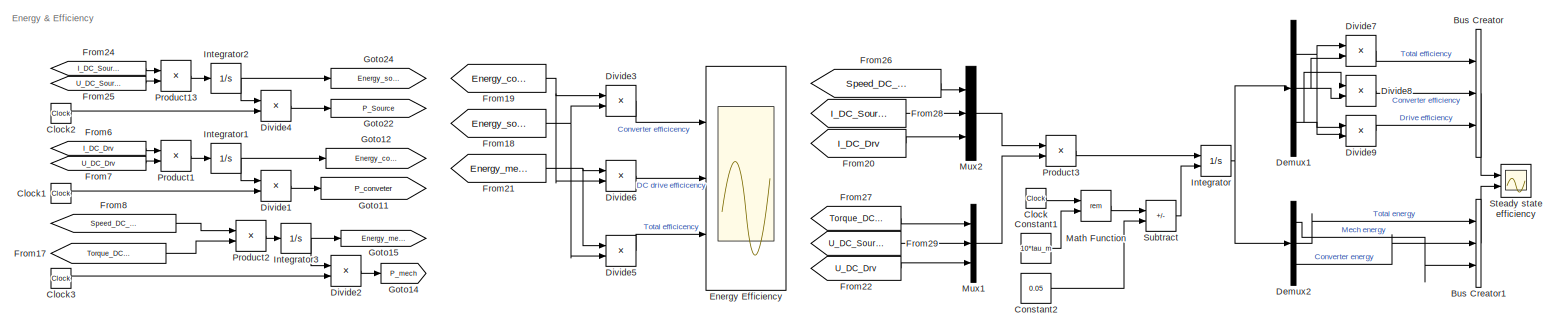
[diagram: root canvas - part 1/3, full width, top band]
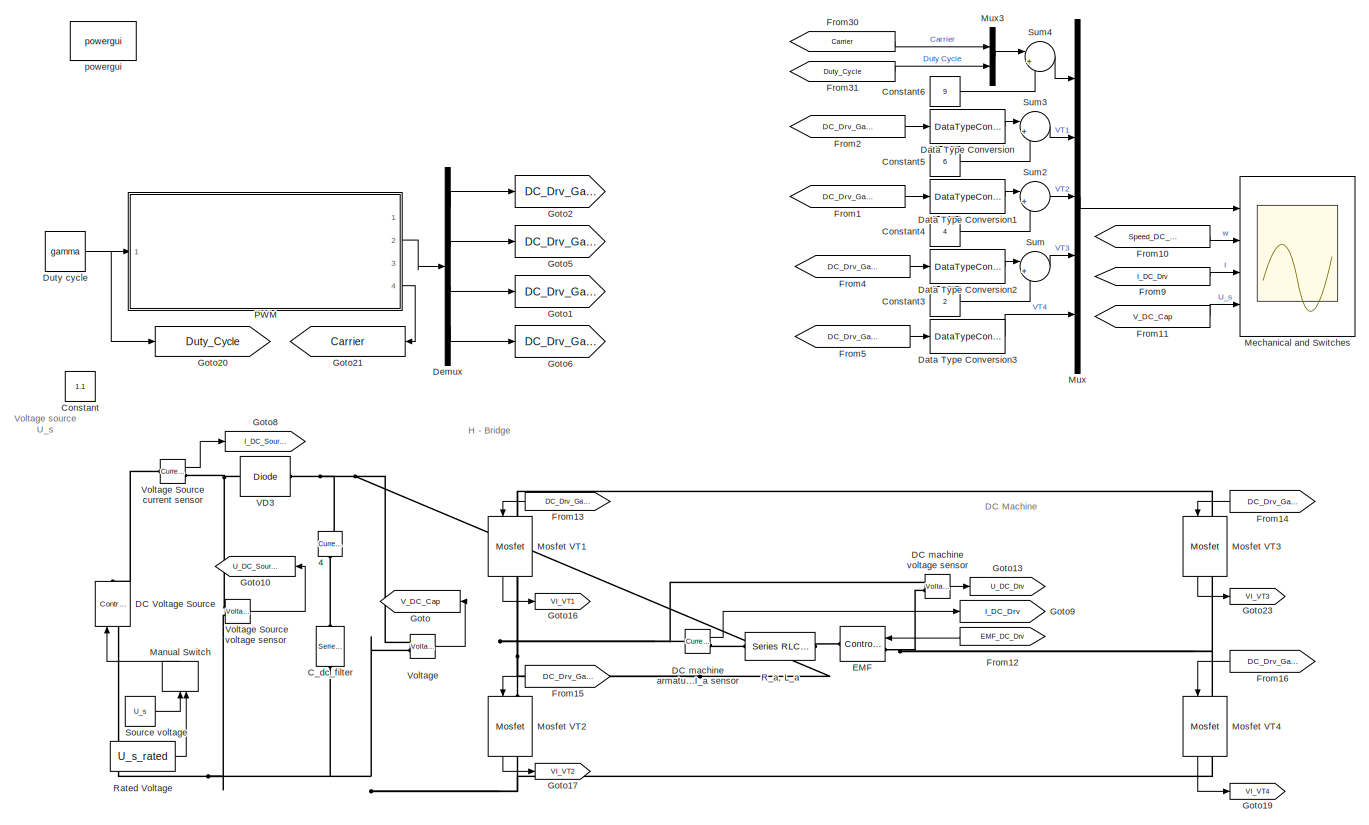
[diagram: root canvas - part 2/3, full width, middle band]
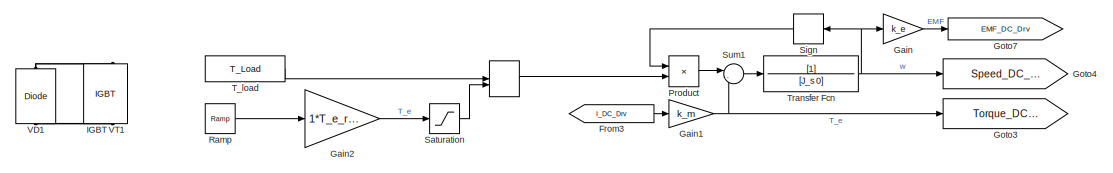
[diagram: root canvas - part 3/3, bottom center region]
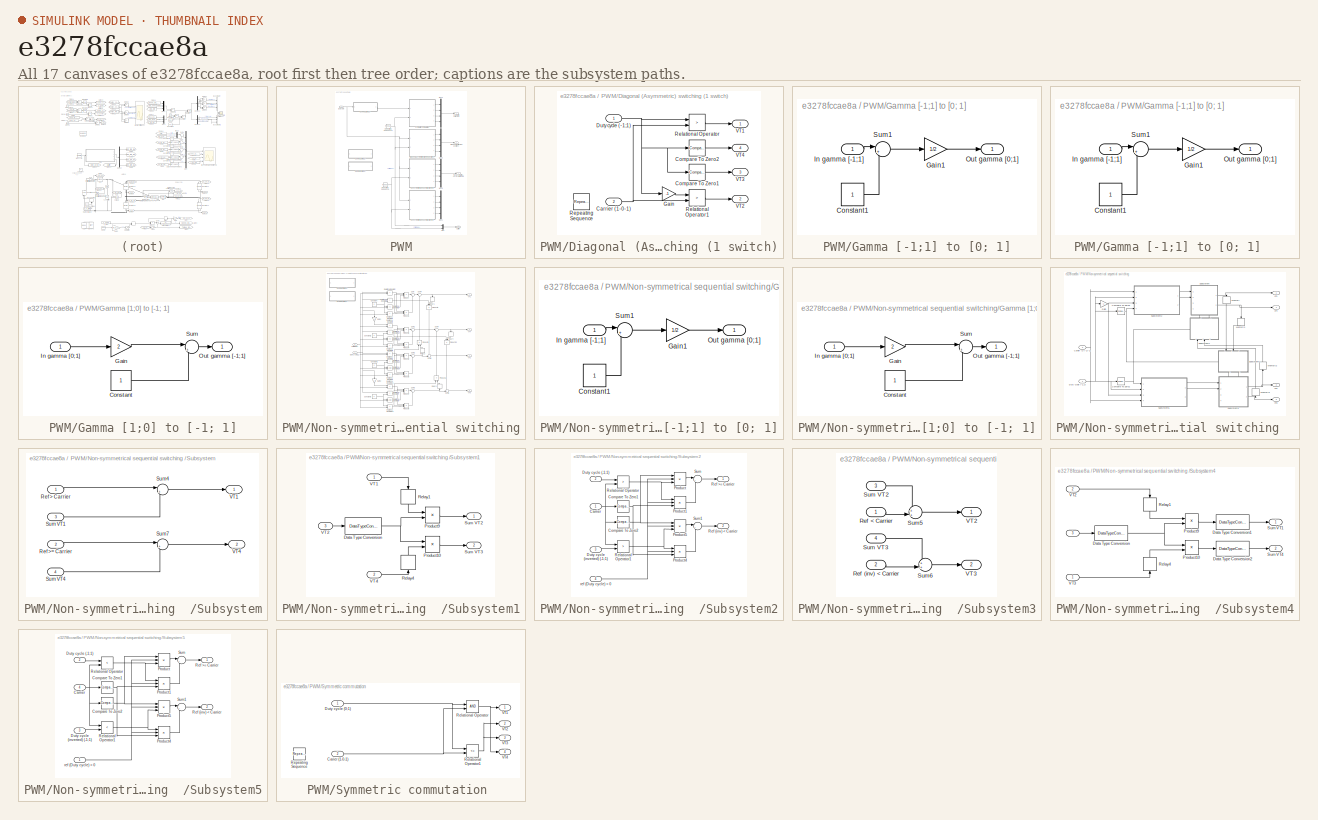
[diagram: thumbnail index - all 17 canvases of the model, root first then tree order]
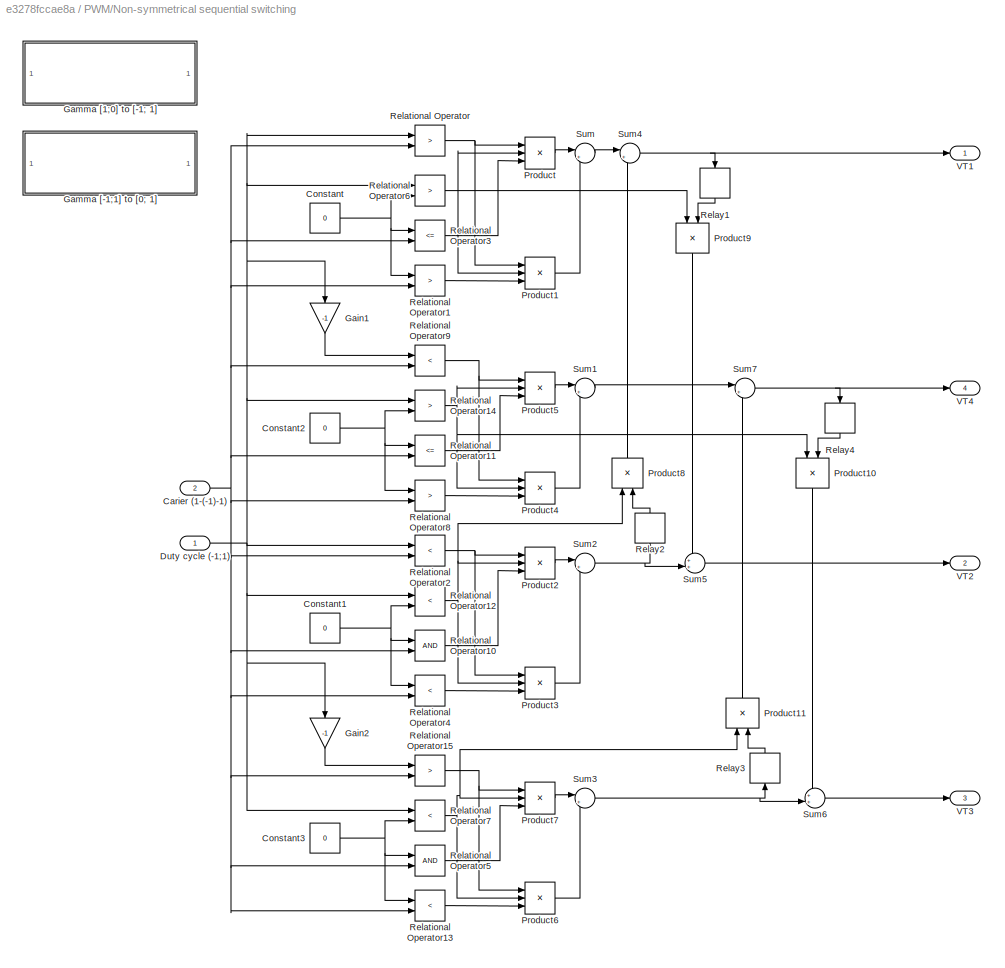
MODEL slx_e3278fccae8a
KIND model
CONFIG AbsTol = auto
CONFIG EnableMultiTasking = off
CONFIG FixedStep = 1e-6
CONFIG MaxStep = auto
CONFIG MinStep = auto
CONFIG RelTol = 1e-5
CONFIG SampleTimeConstraint = Unconstrained
CONFIG SolverName = ode3
CONFIG StartTime = 0.0
CONFIG StopTime = 2*Stop_time
BLOCK [ManualSwitch]  
  CurrentSetting = 0
  NameLocation = top
BLOCK [Reference]  4  REF=spsCurrentMeasurementLib/Current Measurement
  NameLocation = right
  Ports = [0, 1, 0, 0, 0, 1, 1]
  SourceBlock = spsCurrentMeasurementLib/Current Measurement
  SourceType = Current Measurement
  UserDataPersistent = on
BLOCK [Reference]  DC machine armature current I_a sensor  REF=spsCurrentMeasurementLib/Current Measurement
  Ports = [0, 1, 0, 0, 0, 1, 1]
  SourceBlock = spsCurrentMeasurementLib/Current Measurement
  SourceType = Current Measurement
  UserDataPersistent = on
BLOCK [Reference]  Voltage Source current sensor  REF=spsCurrentMeasurementLib/Current Measurement
  Ports = [0, 1, 0, 0, 0, 1, 1]
  SourceBlock = spsCurrentMeasurementLib/Current Measurement
  SourceType = Current Measurement
  UserDataPersistent = on
BLOCK [BusCreator] Bus Creator
  DisplayOption = bar
  InheritFromInputs = on
  Inputs = 3
  Ports = [3, 1]
BLOCK [BusCreator] Bus Creator1
  DisplayOption = bar
  InheritFromInputs = on
  Inputs = 3
  Ports = [3, 1]
BLOCK [Reference] C_dc_filter  REF=spsSeriesRLCBranchLib/Series RLC Branch
  NameLocation = left
  Ports = [0, 0, 0, 0, 0, 1, 1]
  SourceBlock = spsSeriesRLCBranchLib/Series RLC Branch
  SourceType = Series RLC Branch
BLOCK [Clock] Clock
  NameLocation = left
BLOCK [Clock] Clock1
BLOCK [Clock] Clock2
BLOCK [Clock] Clock3
BLOCK [Constant] Constant
  IOType = siggen
  Value = 1.1
BLOCK [Constant] Constant1
  NameLocation = left
  Value = 10*tau_m
BLOCK [Constant] Constant2
  NameLocation = left
  Value = 0.05
BLOCK [Constant] Constant3
  Value = 2
BLOCK [Constant] Constant4
  Value = 4
BLOCK [Constant] Constant5
  Value = 6
BLOCK [Constant] Constant6
  Value = 9
BLOCK [Reference] DC Voltage Source  REF=spsControlledVoltageSourceLib/Controlled Voltage Source
  NameLocation = left
  Ports = [1, 0, 0, 0, 0, 1, 1]
  SourceBlock = spsControlledVoltageSourceLib/Controlled Voltage Source
  SourceType = Controlled Voltage Source
BLOCK [Reference] DC machine voltage sensor  REF=spsVoltageMeasurementLib/Voltage Measurement
  NameLocation = top
  Ports = [0, 1, 0, 0, 0, 2]
  SourceBlock = spsVoltageMeasurementLib/Voltage Measurement
  SourceType = Voltage Measurement
  UserDataPersistent = on
BLOCK [DataTypeConversion] Data Type Conversion
  RndMeth = Floor
  SaturateOnIntegerOverflow = off
BLOCK [DataTypeConversion] Data Type Conversion1
  RndMeth = Floor
  SaturateOnIntegerOverflow = off
BLOCK [DataTypeConversion] Data Type Conversion2
  RndMeth = Floor
  SaturateOnIntegerOverflow = off
BLOCK [DataTypeConversion] Data Type Conversion3
  RndMeth = Floor
  SaturateOnIntegerOverflow = off
BLOCK [Demux] Demux
  Ports = [1, 4]
BLOCK [Demux] Demux1
  Outputs = 3
  Ports = [1, 3]
BLOCK [Demux] Demux2
  Outputs = 3
  Ports = [1, 3]
BLOCK [Product] Divide1
  Inputs = */
  Ports = [2, 1]
BLOCK [Product] Divide2
  Inputs = */
  Ports = [2, 1]
BLOCK [Product] Divide3
  Inputs = */
  Ports = [2, 1]
BLOCK [Product] Divide4
  Inputs = */
  Ports = [2, 1]
BLOCK [Product] Divide5
  Inputs = */
  Ports = [2, 1]
BLOCK [Product] Divide6
  Inputs = */
  Ports = [2, 1]
BLOCK [Product] Divide7
  Inputs = */
  Ports = [2, 1]
BLOCK [Product] Divide8
  Inputs = */
  Ports = [2, 1]
BLOCK [Product] Divide9
  Inputs = */
  Ports = [2, 1]
BLOCK [Constant] Duty cycle
  Value = gamma
BLOCK [Reference] EMF  REF=spsControlledVoltageSourceLib/Controlled Voltage Source
  Ports = [1, 0, 0, 0, 0, 1, 1]
  SourceBlock = spsControlledVoltageSourceLib/Controlled Voltage Source
  SourceType = Controlled Voltage Source
BLOCK [Scope] Energy Efficiency
  Floating = off
  NumInputPorts = 3
  Ports = [3]
  ScopeSpecificationString = Simulink.scopes.TimeScopeBlockCfg('CurrentConfiguration', extmgr.ConfigurationSet(extmgr.Configuration('Core','General UI',true,'FigureColor',[1 1 1]),extmgr.Configuration('Core','Source UI',true),extmgr.Configuration('Sources','WiredSimulink',true,'DataLoggingVariableName','ScopeData1','DataLoggingSaveFormat','Array','DataLoggingDecimation','1','DataLoggingDecimateData',true),extmgr.Configuration...<+3475ch>
BLOCK [From] From1
  GotoTag = DC_Drv_Gate2
  TagVisibility = global
BLOCK [From] From10
  GotoTag = Speed_DC_Drv_rad_s
BLOCK [From] From11
  GotoTag = V_DC_Cap
BLOCK [From] From12
  GotoTag = EMF_DC_Drv
  NameLocation = right
BLOCK [From] From13
  GotoTag = DC_Drv_Gate1
  TagVisibility = global
BLOCK [From] From14
  GotoTag = DC_Drv_Gate3
  TagVisibility = global
BLOCK [From] From15
  GotoTag = DC_Drv_Gate2
  NameLocation = top
  TagVisibility = global
BLOCK [From] From16
  GotoTag = DC_Drv_Gate4
  NameLocation = top
  TagVisibility = global
BLOCK [From] From17
  GotoTag = Torque_DC_Drv
BLOCK [From] From18
  GotoTag = Energy_source
BLOCK [From] From19
  GotoTag = Energy_converter
BLOCK [From] From2
  GotoTag = DC_Drv_Gate1
  TagVisibility = global
BLOCK [From] From20
  GotoTag = I_DC_Drv
BLOCK [From] From21
  GotoTag = Energy_mech
BLOCK [From] From22
  GotoTag = U_DC_Drv
BLOCK [From] From24
  GotoTag = I_DC_Source
  NameLocation = top
BLOCK [From] From25
  GotoTag = U_DC_Source
BLOCK [From] From26
  GotoTag = Speed_DC_Drv_rad_s
BLOCK [From] From27
  GotoTag = Torque_DC_Drv
BLOCK [From] From28
  GotoTag = I_DC_Source
BLOCK [From] From29
  GotoTag = U_DC_Source
BLOCK [From] From3
  GotoTag = I_DC_Drv
BLOCK [From] From30
  GotoTag = Carrier
BLOCK [From] From31
  GotoTag = Duty_Cycle
BLOCK [From] From4
  GotoTag = DC_Drv_Gate3
  TagVisibility = global
BLOCK [From] From5
  GotoTag = DC_Drv_Gate4
  TagVisibility = global
BLOCK [From] From6
  GotoTag = I_DC_Drv
BLOCK [From] From7
  GotoTag = U_DC_Drv
BLOCK [From] From8
  GotoTag = Speed_DC_Drv_rad_s
  NameLocation = top
BLOCK [From] From9
  GotoTag = I_DC_Drv
BLOCK [Gain] Gain
  Gain = k_e
BLOCK [Gain] Gain1
  Gain = k_m
BLOCK [Gain] Gain2
  Gain = 1*T_e_rated
BLOCK [Goto] Goto
  GotoTag = V_DC_Cap
  NameLocation = top
BLOCK [Goto] Goto1
  GotoTag = DC_Drv_Gate3
  TagVisibility = global
BLOCK [Goto] Goto10
  GotoTag = U_DC_Source
  NameLocation = top
BLOCK [Goto] Goto11
  GotoTag = P_conveter
BLOCK [Goto] Goto12
  GotoTag = Energy_converter
  NameLocation = top
BLOCK [Goto] Goto13
  GotoTag = U_DC_Drv
  NameLocation = right
BLOCK [Goto] Goto14
  GotoTag = P_mech
BLOCK [Goto] Goto15
  GotoTag = Energy_mech
BLOCK [Goto] Goto16
  GotoTag = VI_VT1
  NameLocation = top
BLOCK [Goto] Goto17
  GotoTag = VI_VT2
  NameLocation = top
BLOCK [Goto] Goto19
  GotoTag = VI_VT4
  NameLocation = top
BLOCK [Goto] Goto2
  GotoTag = DC_Drv_Gate1
  TagVisibility = global
BLOCK [Goto] Goto20
  GotoTag = Duty_Cycle
BLOCK [Goto] Goto21
  GotoTag = Carrier
  NameLocation = top
BLOCK [Goto] Goto22
  GotoTag = P_Source
BLOCK [Goto] Goto23
  GotoTag = VI_VT3
  NameLocation = top
BLOCK [Goto] Goto24
  GotoTag = Energy_source
  NameLocation = top
BLOCK [Goto] Goto3
  GotoTag = Torque_DC_Drv
  NameLocation = right
BLOCK [Goto] Goto4
  GotoTag = Speed_DC_Drv_rad_s
  NameLocation = right
BLOCK [Goto] Goto5
  GotoTag = DC_Drv_Gate2
  TagVisibility = global
BLOCK [Goto] Goto6
  GotoTag = DC_Drv_Gate4
  TagVisibility = global
BLOCK [Goto] Goto7
  GotoTag = EMF_DC_Drv
  NameLocation = right
BLOCK [Goto] Goto8
  GotoTag = I_DC_Source
BLOCK [Goto] Goto9
  GotoTag = I_DC_Drv
  NameLocation = right
BLOCK [Reference] IGBT VT1  REF=spsIGBTLib/IGBT
  Commented = on
  NameLocation = right
  Ports = [1, 1, 0, 0, 0, 1, 1]
  SourceBlock = spsIGBTLib/IGBT
  SourceType = IGBT
BLOCK [Integrator] Integrator
  ExternalReset = either
  Ports = [2, 1]
BLOCK [Integrator] Integrator1
  Ports = [1, 1]
BLOCK [Integrator] Integrator2
  Ports = [1, 1]
BLOCK [Integrator] Integrator3
  Ports = [1, 1]
BLOCK [ManualSwitch] Manual Switch
  NameLocation = left
BLOCK [Math] Math Function
  Operator = rem
  Ports = [2, 1]
BLOCK [Scope] Mechanical and Switches
  Floating = off
  NumInputPorts = 4
  Ports = [4]
  ScopeSpecificationString = Simulink.scopes.TimeScopeBlockCfg('CurrentConfiguration', extmgr.ConfigurationSet(extmgr.Configuration('Core','General UI',true,'FigureColor',[1 1 1]),extmgr.Configuration('Core','Source UI',true),extmgr.Configuration('Sources','WiredSimulink',true,'DataLoggingVariableName','Current_speed','DataLoggingSaveFormat','StructureWithTime','DataLoggingDecimation','1','DataLoggingDecimateData',true,'DataL...<+5605ch>
BLOCK [Reference] Mosfet VT1  REF=spsMosfetLib/Mosfet
  NameLocation = right
  Ports = [1, 1, 0, 0, 0, 1, 1]
  SourceBlock = spsMosfetLib/Mosfet
  SourceType = Mosfet
BLOCK [Reference] Mosfet VT2  REF=spsMosfetLib/Mosfet
  NameLocation = right
  Ports = [1, 1, 0, 0, 0, 1, 1]
  SourceBlock = spsMosfetLib/Mosfet
  SourceType = Mosfet
BLOCK [Reference] Mosfet VT3  REF=spsMosfetLib/Mosfet
  NameLocation = right
  Ports = [1, 1, 0, 0, 0, 1, 1]
  SourceBlock = spsMosfetLib/Mosfet
  SourceType = Mosfet
BLOCK [Reference] Mosfet VT4  REF=spsMosfetLib/Mosfet
  NameLocation = right
  Ports = [1, 1, 0, 0, 0, 1, 1]
  SourceBlock = spsMosfetLib/Mosfet
  SourceType = Mosfet
BLOCK [Mux] Mux
  DisplayOption = bar
  Inputs = 5
  Ports = [5, 1]
BLOCK [Mux] Mux1
  DisplayOption = bar
  Inputs = 3
  Ports = [3, 1]
BLOCK [Mux] Mux2
  DisplayOption = bar
  Inputs = 3
  Ports = [3, 1]
BLOCK [Mux] Mux3
  DisplayOption = bar
  Inputs = 2
  NameLocation = right
  Ports = [2, 1]
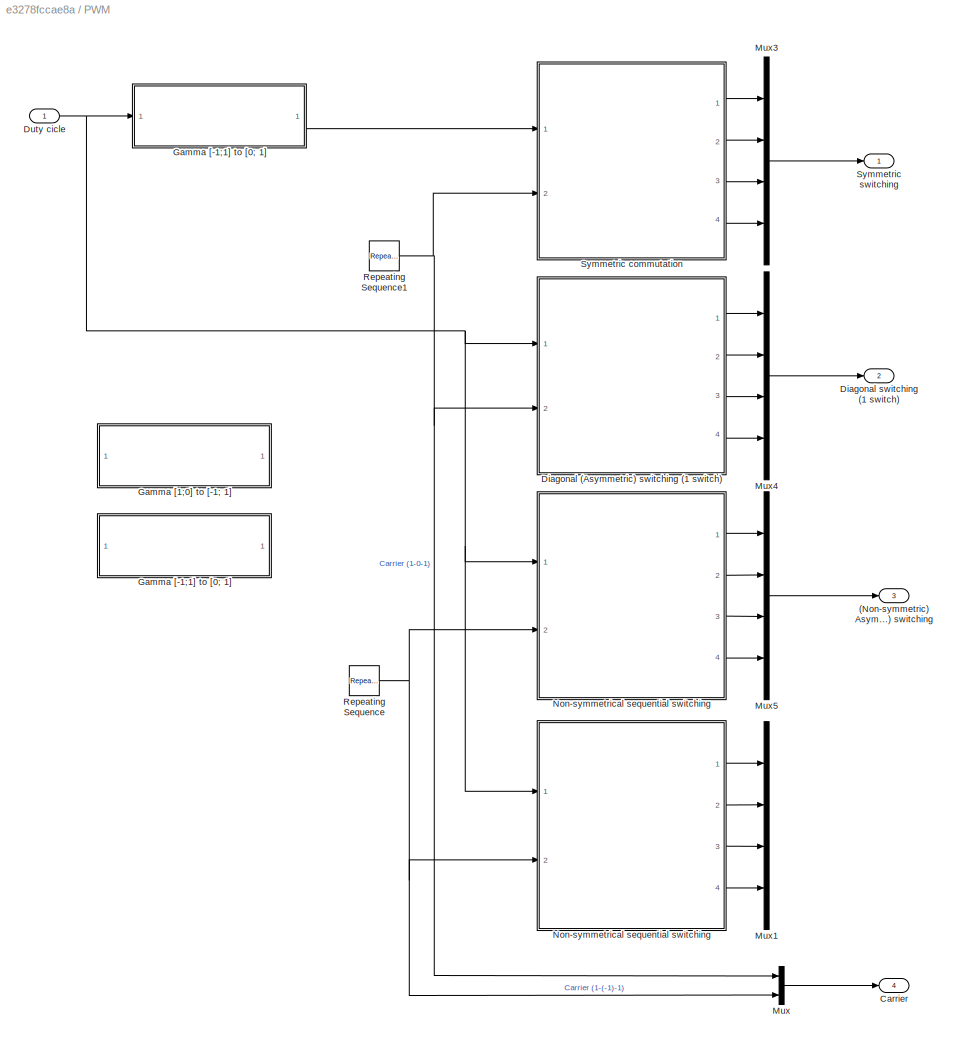
BLOCK [SubSystem] PWM
  Ports = [1, 4]
BLOCK [Outport] PWM/(Non-symmetric) Asymmetric (sequential) switching
  Port = 3
  VectorParamsAs1DForOutWhenUnconnected = off
BLOCK [Outport] PWM/Carrier
  Port = 4
  VectorParamsAs1DForOutWhenUnconnected = off
BLOCK [SubSystem] PWM/Diagonal (Asymmetric) switching (1 switch)
  Ports = [2, 4]
BLOCK [Inport] PWM/Diagonal (Asymmetric) switching (1 switch)/Carrier (1-0-1)
  Port = 2
BLOCK [Reference] PWM/Diagonal (Asymmetric) switching (1 switch)/Compare To Zero1  REF=simulink/Logic and Bit
Operations/Compare
To Zero
  Ports = [1, 1]
  SourceBlock = simulink/Logic and Bit\nOperations/Compare\nTo Zero
  SourceType = Compare To Zero
BLOCK [Reference] PWM/Diagonal (Asymmetric) switching (1 switch)/Compare To Zero2  REF=simulink/Logic and Bit
Operations/Compare
To Zero
  Ports = [1, 1]
  SourceBlock = simulink/Logic and Bit\nOperations/Compare\nTo Zero
  SourceType = Compare To Zero
BLOCK [Inport] PWM/Diagonal (Asymmetric) switching (1 switch)/Duty cycle (-1;1)
BLOCK [Gain] PWM/Diagonal (Asymmetric) switching (1 switch)/Gain
  Gain = -1
BLOCK [RelationalOperator] PWM/Diagonal (Asymmetric) switching (1 switch)/Relational Operator
  InputSameDT = off
  Operator = >
  OutDataTypeStr = boolean
  Ports = [2, 1]
BLOCK [RelationalOperator] PWM/Diagonal (Asymmetric) switching (1 switch)/Relational Operator1
  InputSameDT = off
  Operator = >
  OutDataTypeStr = boolean
  Ports = [2, 1]
BLOCK [Reference] PWM/Diagonal (Asymmetric) switching (1 switch)/Repeating Sequence  REF=simulink/Sources/Repeating
Sequence
  Commented = on
  Ports = [0, 1]
  SourceBlock = simulink/Sources/Repeating\nSequence
  SourceType = Repeating table
BLOCK [Outport] PWM/Diagonal (Asymmetric) switching (1 switch)/VT1
  VectorParamsAs1DForOutWhenUnconnected = off
BLOCK [Outport] PWM/Diagonal (Asymmetric) switching (1 switch)/VT2
  Port = 2
  VectorParamsAs1DForOutWhenUnconnected = off
BLOCK [Outport] PWM/Diagonal (Asymmetric) switching (1 switch)/VT3
  Port = 3
  VectorParamsAs1DForOutWhenUnconnected = off
BLOCK [Outport] PWM/Diagonal (Asymmetric) switching (1 switch)/VT4
  Port = 4
  VectorParamsAs1DForOutWhenUnconnected = off
BLOCK [Outport] PWM/Diagonal switching (1 switch)
  Port = 2
  VectorParamsAs1DForOutWhenUnconnected = off
BLOCK [Inport] PWM/Duty cicle
BLOCK [SubSystem] PWM/Gamma [-1;1] to [0; 1]
  Commented = on
  Ports = [1, 1]
BLOCK [SubSystem] PWM/Gamma [-1;1] to [0; 1]  
  Ports = [1, 1]
BLOCK [Constant] PWM/Gamma [-1;1] to [0; 1]  /Constant1
BLOCK [Gain] PWM/Gamma [-1;1] to [0; 1]  /Gain1
  Gain = 1/2
BLOCK [Inport] PWM/Gamma [-1;1] to [0; 1]  /In gamma [-1;1]
BLOCK [Outport] PWM/Gamma [-1;1] to [0; 1]  /Out gamma [0;1]
BLOCK [Sum] PWM/Gamma [-1;1] to [0; 1]  /Sum1
  Inputs = |++
  Ports = [2, 1]
BLOCK [Constant] PWM/Gamma [-1;1] to [0; 1]/Constant1
BLOCK [Gain] PWM/Gamma [-1;1] to [0; 1]/Gain1
  Gain = 1/2
BLOCK [Inport] PWM/Gamma [-1;1] to [0; 1]/In gamma [-1;1]
BLOCK [Outport] PWM/Gamma [-1;1] to [0; 1]/Out gamma [0;1]
BLOCK [Sum] PWM/Gamma [-1;1] to [0; 1]/Sum1
  Inputs = |++
  Ports = [2, 1]
BLOCK [SubSystem] PWM/Gamma [1;0] to [-1; 1]
  Commented = on
  Ports = [1, 1]
BLOCK [Constant] PWM/Gamma [1;0] to [-1; 1]/Constant
BLOCK [Gain] PWM/Gamma [1;0] to [-1; 1]/Gain
  Gain = 2
BLOCK [Inport] PWM/Gamma [1;0] to [-1; 1]/In gamma [0;1]
BLOCK [Outport] PWM/Gamma [1;0] to [-1; 1]/Out gamma [-1;1]
BLOCK [Sum] PWM/Gamma [1;0] to [-1; 1]/Sum
  Inputs = |+-
  Ports = [2, 1]
BLOCK [Mux] PWM/Mux
  DisplayOption = bar
  Inputs = 3
  Ports = [3, 1]
BLOCK [Mux] PWM/Mux1
  Commented = on
  DisplayOption = bar
  Ports = [4, 1]
BLOCK [Mux] PWM/Mux3
  DisplayOption = bar
  Ports = [4, 1]
BLOCK [Mux] PWM/Mux4
  DisplayOption = bar
  Ports = [4, 1]
BLOCK [Mux] PWM/Mux5
  DisplayOption = bar
  Ports = [4, 1]
BLOCK [SubSystem] PWM/Non-symmetrical sequential switching
  Ports = [2, 4]
BLOCK [SubSystem] PWM/Non-symmetrical sequential switching  
  Commented = on
  Ports = [2, 4]
BLOCK [Inport] PWM/Non-symmetrical sequential switching  /Carier (1-(-1)-1)
  Port = 2
BLOCK [Reference] PWM/Non-symmetrical sequential switching  /Compare To Zero1  REF=simulink/Logic and Bit
Operations/Compare
To Zero
  Ports = [1, 1]
  SourceBlock = simulink/Logic and Bit\nOperations/Compare\nTo Zero
  SourceType = Compare To Zero
BLOCK [Reference] PWM/Non-symmetrical sequential switching  /Compare To Zero5  REF=simulink/Logic and Bit
Operations/Compare
To Zero
  Ports = [1, 1]
  SourceBlock = simulink/Logic and Bit\nOperations/Compare\nTo Zero
  SourceType = Compare To Zero
BLOCK [Inport] PWM/Non-symmetrical sequential switching  /Duty cycle (-1;1)
BLOCK [Gain] PWM/Non-symmetrical sequential switching  /Gain
  Gain = -1
BLOCK [Memory] PWM/Non-symmetrical sequential switching  /Memory
  NameLocation = right
BLOCK [Memory] PWM/Non-symmetrical sequential switching  /Memory1
  NameLocation = right
BLOCK [Memory] PWM/Non-symmetrical sequential switching  /Memory2
  NameLocation = right
BLOCK [Memory] PWM/Non-symmetrical sequential switching  /Memory3
  NameLocation = right
BLOCK [SubSystem] PWM/Non-symmetrical sequential switching  /Subsystem
  PortSchema = {"entries":[{"content":{"sides":[{"content":{"connectorIds":["In1","In2"]},"type":"ConnectorPlacement.EquallySpacedRectSide","uuid":"1edc13bd-59e0-4cc0-9bf6-69c0c14bb274"},{"content":{"connectorIds":["Out1","Out2"],"side":"RIGHT"},"type":"ConnectorPlacement.EquallySpacedRectSide","uuid":"287b6d5d-6373-4198-a62c-9ab13e508db8"},{"content":{"connectorIds":[],"side":"TOP"},"type":"ConnectorPlacement.E...<+552ch>
  Ports = [4, 2]
BLOCK [Inport] PWM/Non-symmetrical sequential switching  /Subsystem/Ref > Carrier
BLOCK [Inport] PWM/Non-symmetrical sequential switching  /Subsystem/Ref >= Carrier
  Port = 2
BLOCK [Inport] PWM/Non-symmetrical sequential switching  /Subsystem/Sum VT1
  OutDataTypeStr = uint16
  Port = 3
BLOCK [Inport] PWM/Non-symmetrical sequential switching  /Subsystem/Sum VT4
  OutDataTypeStr = uint16
  Port = 4
BLOCK [Sum] PWM/Non-symmetrical sequential switching  /Subsystem/Sum4
  Inputs = |++
  Ports = [2, 1]
BLOCK [Sum] PWM/Non-symmetrical sequential switching  /Subsystem/Sum7
  Inputs = |++
  Ports = [2, 1]
BLOCK [Outport] PWM/Non-symmetrical sequential switching  /Subsystem/VT1
  OutDataTypeStr = uint16
BLOCK [Outport] PWM/Non-symmetrical sequential switching  /Subsystem/VT4
  OutDataTypeStr = uint16
  Port = 2
BLOCK [SubSystem] PWM/Non-symmetrical sequential switching  /Subsystem1
  NameLocation = left
  PortSchema = {"entries":[{"content":{"sides":[{"content":{"connectorIds":["In1","In2"]},"type":"ConnectorPlacement.EquallySpacedRectSide","uuid":"708c509a-3c1c-41e9-926f-0364c84709fb"},{"content":{"connectorIds":["Out1","Out2"],"side":"RIGHT"},"type":"ConnectorPlacement.EquallySpacedRectSide","uuid":"49f51926-54da-4421-ac73-f503aa17b719"},{"content":{"connectorIds":["In3"],"side":"TOP"},"type":"ConnectorPlacem...<+402ch>
  Ports = [3, 2]
BLOCK [DataTypeConversion] PWM/Non-symmetrical sequential switching  /Subsystem1/Data Type Conversion
  OutDataTypeStr = uint16
  RndMeth = Floor
  SaturateOnIntegerOverflow = off
BLOCK [Product] PWM/Non-symmetrical sequential switching  /Subsystem1/Product10
  OutDataTypeStr = uint16
  Ports = [2, 1]
BLOCK [Product] PWM/Non-symmetrical sequential switching  /Subsystem1/Product9
  OutDataTypeStr = uint16
  Ports = [2, 1]
BLOCK [Relay] PWM/Non-symmetrical sequential switching  /Subsystem1/Relay1
  NameLocation = left
  OffOutputValue = 1
  OffSwitchValue = 0.001
  OnOutputValue = 0
  OnSwitchValue = 0.999
BLOCK [Relay] PWM/Non-symmetrical sequential switching  /Subsystem1/Relay4
  NameLocation = left
  OffOutputValue = 1
  OffSwitchValue = 0.001
  OnOutputValue = 0
  OnSwitchValue = 0.999
BLOCK [Outport] PWM/Non-symmetrical sequential switching  /Subsystem1/Sum VT2
BLOCK [Outport] PWM/Non-symmetrical sequential switching  /Subsystem1/Sum VT3
  Port = 2
BLOCK [Inport] PWM/Non-symmetrical sequential switching  /Subsystem1/VT1
BLOCK [Inport] PWM/Non-symmetrical sequential switching  /Subsystem1/VT2
  Port = 3
BLOCK [Inport] PWM/Non-symmetrical sequential switching  /Subsystem1/VT4
  Port = 2
BLOCK [SubSystem] PWM/Non-symmetrical sequential switching  /Subsystem2
  Ports = [4, 2]
BLOCK [Inport] PWM/Non-symmetrical sequential switching  /Subsystem2/Carrier
BLOCK [Reference] PWM/Non-symmetrical sequential switching  /Subsystem2/Compare To Zero1  REF=simulink/Logic and Bit
Operations/Compare
To Zero
  NameLocation = top
  Ports = [1, 1]
  SourceBlock = simulink/Logic and Bit\nOperations/Compare\nTo Zero
  SourceType = Compare To Zero
BLOCK [Reference] PWM/Non-symmetrical sequential switching  /Subsystem2/Compare To Zero2  REF=simulink/Logic and Bit
Operations/Compare
To Zero
  Ports = [1, 1]
  SourceBlock = simulink/Logic and Bit\nOperations/Compare\nTo Zero
  SourceType = Compare To Zero
BLOCK [Inport] PWM/Non-symmetrical sequential switching  /Subsystem2/Duty cycle (-1;1)
  NameLocation = top
  Port = 2
BLOCK [Inport] PWM/Non-symmetrical sequential switching  /Subsystem2/Duty cycle (inverted) (-1;1)
  Port = 3
BLOCK [Product] PWM/Non-symmetrical sequential switching  /Subsystem2/Product
  Inputs = 3
  Ports = [3, 1]
BLOCK [Product] PWM/Non-symmetrical sequential switching  /Subsystem2/Product1
  Inputs = 3
  Ports = [3, 1]
BLOCK [Product] PWM/Non-symmetrical sequential switching  /Subsystem2/Product4
  Inputs = 3
  Ports = [3, 1]
BLOCK [Product] PWM/Non-symmetrical sequential switching  /Subsystem2/Product5
  Inputs = 3
  Ports = [3, 1]
BLOCK [Outport] PWM/Non-symmetrical sequential switching  /Subsystem2/Ref (inv) < Carrier
  Port = 2
BLOCK [Outport] PWM/Non-symmetrical sequential switching  /Subsystem2/Ref >= Carrier
BLOCK [RelationalOperator] PWM/Non-symmetrical sequential switching  /Subsystem2/Relational Operator
  InputSameDT = off
  Operator = >
  OutDataTypeStr = boolean
  Ports = [2, 1]
BLOCK [RelationalOperator] PWM/Non-symmetrical sequential switching  /Subsystem2/Relational Operator1
  InputSameDT = off
  Operator = >
  OutDataTypeStr = boolean
  Ports = [2, 1]
BLOCK [Sum] PWM/Non-symmetrical sequential switching  /Subsystem2/Sum
  Inputs = |++
  Ports = [2, 1]
BLOCK [Sum] PWM/Non-symmetrical sequential switching  /Subsystem2/Sum1
  Inputs = |++
  Ports = [2, 1]
BLOCK [Inport] PWM/Non-symmetrical sequential switching  /Subsystem2/ref (Duty cycle) > 0
  Port = 4
BLOCK [SubSystem] PWM/Non-symmetrical sequential switching  /Subsystem3
  PortSchema = {"entries":[{"content":{"sides":[{"content":{"connectorIds":["In1","In2"]},"type":"ConnectorPlacement.EquallySpacedRectSide","uuid":"1edc13bd-59e0-4cc0-9bf6-69c0c14bb274"},{"content":{"connectorIds":["Out1","Out2"],"side":"RIGHT"},"type":"ConnectorPlacement.EquallySpacedRectSide","uuid":"287b6d5d-6373-4198-a62c-9ab13e508db8"},{"content":{"connectorIds":["In3","In4"],"side":"TOP"},"type":"Connector...<+408ch>
  Ports = [4, 2]
BLOCK [Inport] PWM/Non-symmetrical sequential switching  /Subsystem3/Ref (inv) < Carrier
  Port = 2
BLOCK [Inport] PWM/Non-symmetrical sequential switching  /Subsystem3/Ref < Carrier
BLOCK [Inport] PWM/Non-symmetrical sequential switching  /Subsystem3/Sum VT2
  Port = 3
BLOCK [Inport] PWM/Non-symmetrical sequential switching  /Subsystem3/Sum VT3
  Port = 4
BLOCK [Sum] PWM/Non-symmetrical sequential switching  /Subsystem3/Sum5
  Inputs = ++|
  Ports = [2, 1]
BLOCK [Sum] PWM/Non-symmetrical sequential switching  /Subsystem3/Sum6
  Inputs = ++|
  Ports = [2, 1]
BLOCK [Outport] PWM/Non-symmetrical sequential switching  /Subsystem3/VT2
  VectorParamsAs1DForOutWhenUnconnected = off
BLOCK [Outport] PWM/Non-symmetrical sequential switching  /Subsystem3/VT3
  Port = 2
  VectorParamsAs1DForOutWhenUnconnected = off
BLOCK [SubSystem] PWM/Non-symmetrical sequential switching  /Subsystem4
  NameLocation = right
  PortSchema = {"entries":[{"content":{"sides":[{"content":{"connectorIds":["In1","In2"]},"type":"ConnectorPlacement.EquallySpacedRectSide","uuid":"708c509a-3c1c-41e9-926f-0364c84709fb"},{"content":{"connectorIds":["Out1","Out2"],"side":"RIGHT"},"type":"ConnectorPlacement.EquallySpacedRectSide","uuid":"49f51926-54da-4421-ac73-f503aa17b719"},{"content":{"connectorIds":["In3"],"side":"TOP"},"type":"ConnectorPlacem...<+402ch>
  Ports = [3, 2]
BLOCK [Inport] PWM/Non-symmetrical sequential switching  /Subsystem4/ 
  Port = 3
BLOCK [DataTypeConversion] PWM/Non-symmetrical sequential switching  /Subsystem4/Data Type Conversion
  OutDataTypeStr = uint16
  RndMeth = Floor
  SaturateOnIntegerOverflow = off
BLOCK [DataTypeConversion] PWM/Non-symmetrical sequential switching  /Subsystem4/Data Type Conversion1
  OutDataTypeStr = uint16
  RndMeth = Floor
  SaturateOnIntegerOverflow = off
BLOCK [DataTypeConversion] PWM/Non-symmetrical sequential switching  /Subsystem4/Data Type Conversion2
  OutDataTypeStr = uint16
  RndMeth = Floor
  SaturateOnIntegerOverflow = off
BLOCK [Product] PWM/Non-symmetrical sequential switching  /Subsystem4/Product10
  OutDataTypeStr = uint32
  Ports = [2, 1]
BLOCK [Product] PWM/Non-symmetrical sequential switching  /Subsystem4/Product9
  OutDataTypeStr = uint32
  Ports = [2, 1]
BLOCK [Relay] PWM/Non-symmetrical sequential switching  /Subsystem4/Relay1
  NameLocation = left
  OffOutputValue = 1
  OffSwitchValue = 0.001
  OnOutputValue = 0
  OnSwitchValue = 0.999
BLOCK [Relay] PWM/Non-symmetrical sequential switching  /Subsystem4/Relay4
  NameLocation = left
  OffOutputValue = 1
  OffSwitchValue = 0.001
  OnOutputValue = 0
  OnSwitchValue = 0.999
BLOCK [Outport] PWM/Non-symmetrical sequential switching  /Subsystem4/Sum VT1
BLOCK [Outport] PWM/Non-symmetrical sequential switching  /Subsystem4/Sum VT4
  Port = 2
BLOCK [Inport] PWM/Non-symmetrical sequential switching  /Subsystem4/VT2
  Port = 2
BLOCK [Inport] PWM/Non-symmetrical sequential switching  /Subsystem4/VT3
BLOCK [SubSystem] PWM/Non-symmetrical sequential switching  /Subsystem5
  Ports = [4, 2]
BLOCK [Inport] PWM/Non-symmetrical sequential switching  /Subsystem5/Carrier
  Port = 4
BLOCK [Reference] PWM/Non-symmetrical sequential switching  /Subsystem5/Compare To Zero1  REF=simulink/Logic and Bit
Operations/Compare
To Zero
  NameLocation = top
  Ports = [1, 1]
  SourceBlock = simulink/Logic and Bit\nOperations/Compare\nTo Zero
  SourceType = Compare To Zero
BLOCK [Reference] PWM/Non-symmetrical sequential switching  /Subsystem5/Compare To Zero2  REF=simulink/Logic and Bit
Operations/Compare
To Zero
  Ports = [1, 1]
  SourceBlock = simulink/Logic and Bit\nOperations/Compare\nTo Zero
  SourceType = Compare To Zero
BLOCK [Inport] PWM/Non-symmetrical sequential switching  /Subsystem5/Duty cycle (-1;1)
  NameLocation = top
  Port = 2
BLOCK [Inport] PWM/Non-symmetrical sequential switching  /Subsystem5/Duty cycle (inverted) (-1;1)
  Port = 3
BLOCK [Product] PWM/Non-symmetrical sequential switching  /Subsystem5/Product
  Inputs = 3
  Ports = [3, 1]
BLOCK [Product] PWM/Non-symmetrical sequential switching  /Subsystem5/Product1
  Inputs = 3
  Ports = [3, 1]
BLOCK [Product] PWM/Non-symmetrical sequential switching  /Subsystem5/Product4
  Inputs = 3
  Ports = [3, 1]
BLOCK [Product] PWM/Non-symmetrical sequential switching  /Subsystem5/Product5
  Inputs = 3
  Ports = [3, 1]
BLOCK [Outport] PWM/Non-symmetrical sequential switching  /Subsystem5/Ref (inv) < Carrier
  Port = 2
BLOCK [Outport] PWM/Non-symmetrical sequential switching  /Subsystem5/Ref >= Carrier
BLOCK [RelationalOperator] PWM/Non-symmetrical sequential switching  /Subsystem5/Relational Operator
  InputSameDT = off
  Operator = <
  OutDataTypeStr = boolean
  Ports = [2, 1]
BLOCK [RelationalOperator] PWM/Non-symmetrical sequential switching  /Subsystem5/Relational Operator1
  InputSameDT = off
  Operator = <
  OutDataTypeStr = boolean
  Ports = [2, 1]
BLOCK [Sum] PWM/Non-symmetrical sequential switching  /Subsystem5/Sum
  Inputs = |++
  Ports = [2, 1]
BLOCK [Sum] PWM/Non-symmetrical sequential switching  /Subsystem5/Sum1
  Inputs = |++
  Ports = [2, 1]
BLOCK [Inport] PWM/Non-symmetrical sequential switching  /Subsystem5/ref (Duty cycle) < 0
BLOCK [Outport] PWM/Non-symmetrical sequential switching  /VT1
  VectorParamsAs1DForOutWhenUnconnected = off
BLOCK [Outport] PWM/Non-symmetrical sequential switching  /VT2
  Port = 2
  VectorParamsAs1DForOutWhenUnconnected = off
BLOCK [Outport] PWM/Non-symmetrical sequential switching  /VT3
  Port = 3
  VectorParamsAs1DForOutWhenUnconnected = off
BLOCK [Outport] PWM/Non-symmetrical sequential switching  /VT4
  Port = 4
  VectorParamsAs1DForOutWhenUnconnected = off
BLOCK [Inport] PWM/Non-symmetrical sequential switching/Carier (1-(-1)-1)
  Port = 2
BLOCK [Constant] PWM/Non-symmetrical sequential switching/Constant
  Value = 0
BLOCK [Constant] PWM/Non-symmetrical sequential switching/Constant1
  Value = 0
BLOCK [Constant] PWM/Non-symmetrical sequential switching/Constant2
  Value = 0
BLOCK [Constant] PWM/Non-symmetrical sequential switching/Constant3
  Value = 0
BLOCK [Inport] PWM/Non-symmetrical sequential switching/Duty cycle (-1;1)
BLOCK [Gain] PWM/Non-symmetrical sequential switching/Gain1
  Gain = -1
  NameLocation = left
BLOCK [Gain] PWM/Non-symmetrical sequential switching/Gain2
  Gain = -1
  NameLocation = left
BLOCK [SubSystem] PWM/Non-symmetrical sequential switching/Gamma [-1;1] to [0; 1]
  Commented = on
  Ports = [1, 1]
BLOCK [Constant] PWM/Non-symmetrical sequential switching/Gamma [-1;1] to [0; 1]/Constant1
BLOCK [Gain] PWM/Non-symmetrical sequential switching/Gamma [-1;1] to [0; 1]/Gain1
  Gain = 1/2
BLOCK [Inport] PWM/Non-symmetrical sequential switching/Gamma [-1;1] to [0; 1]/In gamma [-1;1]
BLOCK [Outport] PWM/Non-symmetrical sequential switching/Gamma [-1;1] to [0; 1]/Out gamma [0;1]
BLOCK [Sum] PWM/Non-symmetrical sequential switching/Gamma [-1;1] to [0; 1]/Sum1
  Inputs = |++
  Ports = [2, 1]
BLOCK [SubSystem] PWM/Non-symmetrical sequential switching/Gamma [1;0] to [-1; 1]
  Commented = on
  Ports = [1, 1]
BLOCK [Constant] PWM/Non-symmetrical sequential switching/Gamma [1;0] to [-1; 1]/Constant
BLOCK [Gain] PWM/Non-symmetrical sequential switching/Gamma [1;0] to [-1; 1]/Gain
  Gain = 2
BLOCK [Inport] PWM/Non-symmetrical sequential switching/Gamma [1;0] to [-1; 1]/In gamma [0;1]
BLOCK [Outport] PWM/Non-symmetrical sequential switching/Gamma [1;0] to [-1; 1]/Out gamma [-1;1]
BLOCK [Sum] PWM/Non-symmetrical sequential switching/Gamma [1;0] to [-1; 1]/Sum
  Inputs = |+-
  Ports = [2, 1]
BLOCK [Product] PWM/Non-symmetrical sequential switching/Product
  Inputs = 3
  Ports = [3, 1]
BLOCK [Product] PWM/Non-symmetrical sequential switching/Product1
  Inputs = 3
  Ports = [3, 1]
BLOCK [Product] PWM/Non-symmetrical sequential switching/Product10
  NameLocation = left
  Ports = [2, 1]
BLOCK [Product] PWM/Non-symmetrical sequential switching/Product11
  NameLocation = right
  Ports = [2, 1]
BLOCK [Product] PWM/Non-symmetrical sequential switching/Product2
  Inputs = 3
  Ports = [3, 1]
BLOCK [Product] PWM/Non-symmetrical sequential switching/Product3
  Inputs = 3
  Ports = [3, 1]
BLOCK [Product] PWM/Non-symmetrical sequential switching/Product4
  Inputs = 3
  Ports = [3, 1]
BLOCK [Product] PWM/Non-symmetrical sequential switching/Product5
  Inputs = 3
  Ports = [3, 1]
BLOCK [Product] PWM/Non-symmetrical sequential switching/Product6
  Inputs = 3
  Ports = [3, 1]
BLOCK [Product] PWM/Non-symmetrical sequential switching/Product7
  Inputs = 3
  Ports = [3, 1]
BLOCK [Product] PWM/Non-symmetrical sequential switching/Product8
  NameLocation = right
  Ports = [2, 1]
BLOCK [Product] PWM/Non-symmetrical sequential switching/Product9
  NameLocation = left
  Ports = [2, 1]
BLOCK [RelationalOperator] PWM/Non-symmetrical sequential switching/Relational Operator
  InputSameDT = off
  Operator = >
  OutDataTypeStr = boolean
  Ports = [2, 1]
BLOCK [RelationalOperator] PWM/Non-symmetrical sequential switching/Relational Operator1
  InputSameDT = off
  Operator = >
  OutDataTypeStr = boolean
  Ports = [2, 1]
BLOCK [RelationalOperator] PWM/Non-symmetrical sequential switching/Relational Operator10
  InputSameDT = off
  OutDataTypeStr = boolean
  Ports = [2, 1]
BLOCK [RelationalOperator] PWM/Non-symmetrical sequential switching/Relational Operator11
  InputSameDT = off
  Operator = <=
  OutDataTypeStr = boolean
  Ports = [2, 1]
BLOCK [RelationalOperator] PWM/Non-symmetrical sequential switching/Relational Operator12
  InputSameDT = off
  Operator = <
  OutDataTypeStr = boolean
  Ports = [2, 1]
BLOCK [RelationalOperator] PWM/Non-symmetrical sequential switching/Relational Operator13
  InputSameDT = off
  Operator = <
  OutDataTypeStr = boolean
  Ports = [2, 1]
BLOCK [RelationalOperator] PWM/Non-symmetrical sequential switching/Relational Operator14
  InputSameDT = off
  Operator = >
  OutDataTypeStr = boolean
  Ports = [2, 1]
BLOCK [RelationalOperator] PWM/Non-symmetrical sequential switching/Relational Operator15
  InputSameDT = off
  Operator = >
  OutDataTypeStr = boolean
  Ports = [2, 1]
BLOCK [RelationalOperator] PWM/Non-symmetrical sequential switching/Relational Operator2
  InputSameDT = off
  Operator = <
  OutDataTypeStr = boolean
  Ports = [2, 1]
BLOCK [RelationalOperator] PWM/Non-symmetrical sequential switching/Relational Operator3
  InputSameDT = off
  Operator = <=
  OutDataTypeStr = boolean
  Ports = [2, 1]
BLOCK [RelationalOperator] PWM/Non-symmetrical sequential switching/Relational Operator4
  InputSameDT = off
  Operator = <
  OutDataTypeStr = boolean
  Ports = [2, 1]
BLOCK [RelationalOperator] PWM/Non-symmetrical sequential switching/Relational Operator5
  InputSameDT = off
  OutDataTypeStr = boolean
  Ports = [2, 1]
BLOCK [RelationalOperator] PWM/Non-symmetrical sequential switching/Relational Operator6
  InputSameDT = off
  Operator = >
  OutDataTypeStr = boolean
  Ports = [2, 1]
BLOCK [RelationalOperator] PWM/Non-symmetrical sequential switching/Relational Operator7
  InputSameDT = off
  Operator = <
  OutDataTypeStr = boolean
  Ports = [2, 1]
BLOCK [RelationalOperator] PWM/Non-symmetrical sequential switching/Relational Operator8
  InputSameDT = off
  Operator = >
  OutDataTypeStr = boolean
  Ports = [2, 1]
BLOCK [RelationalOperator] PWM/Non-symmetrical sequential switching/Relational Operator9
  InputSameDT = off
  Operator = <
  OutDataTypeStr = boolean
  Ports = [2, 1]
BLOCK [Relay] PWM/Non-symmetrical sequential switching/Relay1
  NameLocation = left
  OffOutputValue = 1
  OffSwitchValue = 0.001
  OnOutputValue = 0
  OnSwitchValue = 0.999
BLOCK [Relay] PWM/Non-symmetrical sequential switching/Relay2
  NameLocation = right
  OffOutputValue = 1
  OffSwitchValue = 0.001
  OnOutputValue = 0
  OnSwitchValue = 0.999
BLOCK [Relay] PWM/Non-symmetrical sequential switching/Relay3
  NameLocation = right
  OffOutputValue = 1
  OffSwitchValue = 0.001
  OnOutputValue = 0
  OnSwitchValue = 0.999
BLOCK [Relay] PWM/Non-symmetrical sequential switching/Relay4
  NameLocation = right
  OffOutputValue = 1
  OffSwitchValue = 0.001
  OnOutputValue = 0
  OnSwitchValue = 0.999
BLOCK [Sum] PWM/Non-symmetrical sequential switching/Sum
  Inputs = |++
  Ports = [2, 1]
BLOCK [Sum] PWM/Non-symmetrical sequential switching/Sum1
  Inputs = |++
  Ports = [2, 1]
BLOCK [Sum] PWM/Non-symmetrical sequential switching/Sum2
  Inputs = |++
  Ports = [2, 1]
BLOCK [Sum] PWM/Non-symmetrical sequential switching/Sum3
  Inputs = |++
  Ports = [2, 1]
BLOCK [Sum] PWM/Non-symmetrical sequential switching/Sum4
  Inputs = |++
  Ports = [2, 1]
BLOCK [Sum] PWM/Non-symmetrical sequential switching/Sum5
  Inputs = ++|
  Ports = [2, 1]
BLOCK [Sum] PWM/Non-symmetrical sequential switching/Sum6
  Inputs = ++|
  Ports = [2, 1]
BLOCK [Sum] PWM/Non-symmetrical sequential switching/Sum7
  Inputs = |++
  Ports = [2, 1]
BLOCK [Outport] PWM/Non-symmetrical sequential switching/VT1
  VectorParamsAs1DForOutWhenUnconnected = off
BLOCK [Outport] PWM/Non-symmetrical sequential switching/VT2
  Port = 2
  VectorParamsAs1DForOutWhenUnconnected = off
BLOCK [Outport] PWM/Non-symmetrical sequential switching/VT3
  Port = 3
  VectorParamsAs1DForOutWhenUnconnected = off
BLOCK [Outport] PWM/Non-symmetrical sequential switching/VT4
  Port = 4
  VectorParamsAs1DForOutWhenUnconnected = off
BLOCK [Reference] PWM/Repeating Sequence  REF=simulink/Sources/Repeating
Sequence
  Ports = [0, 1]
  SourceBlock = simulink/Sources/Repeating\nSequence
  SourceType = Repeating table
BLOCK [Reference] PWM/Repeating Sequence1  REF=simulink/Sources/Repeating
Sequence
  Ports = [0, 1]
  SourceBlock = simulink/Sources/Repeating\nSequence
  SourceType = Repeating table
BLOCK [SubSystem] PWM/Symmetric commutation 
  Ports = [2, 4]
BLOCK [Inport] PWM/Symmetric commutation /Carier (1-0-1)
  Port = 2
BLOCK [Inport] PWM/Symmetric commutation /Duty cycle (0;1)
BLOCK [RelationalOperator] PWM/Symmetric commutation /Relational Operator
  InputSameDT = off
  OutDataTypeStr = boolean
  Ports = [2, 1]
BLOCK [RelationalOperator] PWM/Symmetric commutation /Relational Operator1
  InputSameDT = off
  Operator = <=
  OutDataTypeStr = boolean
  Ports = [2, 1]
BLOCK [Reference] PWM/Symmetric commutation /Repeating Sequence  REF=simulink/Sources/Repeating
Sequence
  Commented = on
  Ports = [0, 1]
  SourceBlock = simulink/Sources/Repeating\nSequence
  SourceType = Repeating table
BLOCK [Outport] PWM/Symmetric commutation /VT1
  VectorParamsAs1DForOutWhenUnconnected = off
BLOCK [Outport] PWM/Symmetric commutation /VT2
  Port = 2
  VectorParamsAs1DForOutWhenUnconnected = off
BLOCK [Outport] PWM/Symmetric commutation /VT3
  Port = 3
  VectorParamsAs1DForOutWhenUnconnected = off
BLOCK [Outport] PWM/Symmetric commutation /VT4
  Port = 4
  VectorParamsAs1DForOutWhenUnconnected = off
BLOCK [Outport] PWM/Symmetric switching
  VectorParamsAs1DForOutWhenUnconnected = off
BLOCK [Product] Product
  Ports = [2, 1]
BLOCK [Product] Product1
  Ports = [2, 1]
BLOCK [Product] Product13
  Ports = [2, 1]
BLOCK [Product] Product2
  Ports = [2, 1]
BLOCK [Product] Product3
  NameLocation = top
  Ports = [2, 1]
BLOCK [Reference] R_a, L_a  REF=spsSeriesRLCBranchLib/Series RLC Branch
  Ports = [0, 0, 0, 0, 0, 1, 1]
  SourceBlock = spsSeriesRLCBranchLib/Series RLC Branch
  SourceType = Series RLC Branch
BLOCK [Reference] Ramp  REF=simulink/Sources/Ramp
  Ports = [0, 1]
  SourceBlock = simulink/Sources/Ramp
  SourceType = Ramp
BLOCK [Constant] Rated Voltage
  Value = U_s_rated
BLOCK [Saturate] Saturation
  LowerLimit = -T_e_st
  UpperLimit = T_e_st
BLOCK [Signum] Sign
  NameLocation = top
BLOCK [Constant] Source voltage
  Value = U_s
BLOCK [Scope] Steady state efficiency
  Floating = off
  NumInputPorts = 2
  Ports = [2]
  ScopeSpecificationString = Simulink.scopes.TimeScopeBlockCfg('CurrentConfiguration', extmgr.ConfigurationSet(extmgr.Configuration('Core','General UI',true,'FigureColor',[1 1 1]),extmgr.Configuration('Core','Source UI',true),extmgr.Configuration('Sources','WiredSimulink',true,'DataLoggingVariableName','ScopeData2'),extmgr.Configuration('Visuals','Time Domain',true,'SerializedDisplays',{struct('MinYLimReal','0.88575','MaxYLim...<+2678ch>
BLOCK [Sum] Subtract
  IconShape = rectangular
  Inputs = +-
  Ports = [2, 1]
BLOCK [Sum] Sum
  Inputs = |++
  Ports = [2, 1]
BLOCK [Sum] Sum1
  Inputs = |-+
  Ports = [2, 1]
BLOCK [Sum] Sum2
  Inputs = |++
  Ports = [2, 1]
BLOCK [Sum] Sum3
  Inputs = |++
  Ports = [2, 1]
BLOCK [Sum] Sum4
  Inputs = |++
  Ports = [2, 1]
BLOCK [Constant] T_load
  NameLocation = top
  Value = T_Load
BLOCK [TransferFcn] Transfer Fcn
  Denominator = [J_s 0]
BLOCK [Reference] VD1  REF=spsDiodeLib/Diode
  Commented = on
  NameLocation = left
  Ports = [0, 0, 0, 0, 0, 1, 1]
  SourceBlock = spsDiodeLib/Diode
  SourceType = Diode
BLOCK [Reference] VD3  REF=spsDiodeLib/Diode
  Ports = [0, 0, 0, 0, 0, 1, 1]
  SourceBlock = spsDiodeLib/Diode
  SourceType = Diode
BLOCK [Reference] Voltage  REF=spsVoltageMeasurementLib/Voltage Measurement
  Ports = [0, 1, 0, 0, 0, 2]
  SourceBlock = spsVoltageMeasurementLib/Voltage Measurement
  SourceType = Voltage Measurement
  UserDataPersistent = on
BLOCK [Reference] Voltage Source voltage sensor  REF=spsVoltageMeasurementLib/Voltage Measurement
  Ports = [0, 1, 0, 0, 0, 2]
  SourceBlock = spsVoltageMeasurementLib/Voltage Measurement
  SourceType = Voltage Measurement
  UserDataPersistent = on
BLOCK [Reference] powergui  REF=spspowerguiLib/powergui
  Ports = []
  Priority = 1
  SourceBlock = spspowerguiLib/powergui
  SourceType = PSB option menu block
ANNOTATION (root): H - Bridge
ANNOTATION (root): DC Machine
ANNOTATION (root): Energy & Efficiency
ANNOTATION (root): Voltage source U_s
LINE  :1 -> Product:2
LINE  DC machine armature current I_a sensor:1 -> Goto9:1
LINE  Voltage Source current sensor:1 -> Goto8:1
LINE Bus Creator1:1 -> Steady state efficiency:2
LINE Bus Creator:1 -> Steady state efficiency:1
LINE Clock1:1 -> Divide1:2
LINE Clock2:1 -> Divide4:2
LINE Clock3:1 -> Divide2:2
LINE Clock:1 -> Math Function:1
LINE Constant1:1 -> Math Function:2
LINE Constant2:1 -> Subtract:2
LINE Constant3:1 -> Sum:2
LINE Constant4:1 -> Sum2:2
LINE Constant5:1 -> Sum3:2
LINE Constant6:1 -> Sum4:2
LINE DC machine voltage sensor:1 -> Goto13:1
LINE Data Type Conversion1:1 -> Sum2:1
LINE Data Type Conversion2:1 -> Sum:1
LINE Data Type Conversion3:1 -> Mux:5
LINE Data Type Conversion:1 -> Sum3:1
NET Demux1:1 -> Divide7:1, Divide9:1
NET Demux1:2 -> Divide7:2, Divide8:2
NET Demux1:3 -> Divide8:1, Divide9:2
LINE Demux2:1 -> Bus Creator1:3
LINE Demux2:2 -> Bus Creator1:1
LINE Demux2:3 -> Bus Creator1:2
LINE Demux:1 -> Goto2:1
LINE Demux:2 -> Goto5:1
LINE Demux:3 -> Goto1:1
LINE Demux:4 -> Goto6:1
LINE Divide1:1 -> Goto11:1
LINE Divide2:1 -> Goto14:1
LINE Divide3:1 -> Energy Efficiency:1
LINE Divide4:1 -> Goto22:1
LINE Divide5:1 -> Energy Efficiency:3
LINE Divide6:1 -> Energy Efficiency:2
LINE Divide7:1 -> Bus Creator:1
LINE Divide8:1 -> Bus Creator:2
LINE Divide9:1 -> Bus Creator:3
NET Duty cycle:1 -> Goto20:1, PWM:1
LINE From10:1 -> Mechanical and Switches:2
LINE From11:1 -> Mechanical and Switches:4
LINE From12:1 -> EMF:1
LINE From13:1 -> Mosfet VT1:1
LINE From14:1 -> Mosfet VT3:1
LINE From15:1 -> Mosfet VT2:1
LINE From16:1 -> Mosfet VT4:1
LINE From17:1 -> Product2:2
NET From18:1 -> Divide3:2, Divide5:2
NET From19:1 -> Divide3:1, Divide6:2
LINE From1:1 -> Data Type Conversion1:1
LINE From20:1 -> Mux2:3
NET From21:1 -> Divide5:1, Divide6:1
LINE From22:1 -> Mux1:3
LINE From24:1 -> Product13:1
LINE From25:1 -> Product13:2
LINE From26:1 -> Mux2:1
LINE From27:1 -> Mux1:1
LINE From28:1 -> Mux2:2
LINE From29:1 -> Mux1:2
LINE From2:1 -> Data Type Conversion:1
LINE From30:1 -> Mux3:1
LINE From31:1 -> Mux3:2
LINE From3:1 -> Gain1:1
LINE From4:1 -> Data Type Conversion2:1
LINE From5:1 -> Data Type Conversion3:1
LINE From6:1 -> Product1:1
LINE From7:1 -> Product1:2
LINE From8:1 -> Product2:1
LINE From9:1 -> Mechanical and Switches:3
NET Gain1:1 -> Goto3:1, Sum1:2
LINE Gain2:1 -> Saturation:1
LINE Gain:1 -> Goto7:1
NET Integrator1:1 -> Divide1:1, Goto12:1
NET Integrator2:1 -> Divide4:1, Goto24:1
NET Integrator3:1 -> Divide2:1, Goto15:1
NET Integrator:1 -> Demux1:1, Demux2:1
LINE Manual Switch:1 -> DC Voltage Source:1
LINE Math Function:1 -> Subtract:1
LINE Mosfet VT1:1 -> Goto16:1
LINE Mosfet VT2:1 -> Goto17:1
LINE Mosfet VT3:1 -> Goto23:1
LINE Mosfet VT4:1 -> Goto19:1
LINE Mux1:1 -> Product3:2
LINE Mux2:1 -> Product3:1
LINE Mux3:1 -> Sum4:1
LINE Mux:1 -> Mechanical and Switches:1
NET PWM/Diagonal (Asymmetric) switching (1 switch)/Carrier (1-0-1):1 -> PWM/Diagonal (Asymmetric) switching (1 switch)/Relational Operator1:2, PWM/Diagonal (Asymmetric) switching (1 switch)/Relational Operator:2
LINE PWM/Diagonal (Asymmetric) switching (1 switch)/Compare To Zero1:1 -> PWM/Diagonal (Asymmetric) switching (1 switch)/VT3:1
LINE PWM/Diagonal (Asymmetric) switching (1 switch)/Compare To Zero2:1 -> PWM/Diagonal (Asymmetric) switching (1 switch)/VT4:1
NET PWM/Diagonal (Asymmetric) switching (1 switch)/Duty cycle (-1;1):1 -> PWM/Diagonal (Asymmetric) switching (1 switch)/Compare To Zero1:1, PWM/Diagonal (Asymmetric) switching (1 switch)/Compare To Zero2:1, PWM/Diagonal (Asymmetric) switching (1 switch)/Gain:1, PWM/Diagonal (Asymmetric) switching (1 switch)/Relational Operator:1
LINE PWM/Diagonal (Asymmetric) switching (1 switch)/Gain:1 -> PWM/Diagonal (Asymmetric) switching (1 switch)/Relational Operator1:1
LINE PWM/Diagonal (Asymmetric) switching (1 switch)/Relational Operator1:1 -> PWM/Diagonal (Asymmetric) switching (1 switch)/VT2:1
LINE PWM/Diagonal (Asymmetric) switching (1 switch)/Relational Operator:1 -> PWM/Diagonal (Asymmetric) switching (1 switch)/VT1:1
LINE PWM/Diagonal (Asymmetric) switching (1 switch):1 -> PWM/Mux4:1
LINE PWM/Diagonal (Asymmetric) switching (1 switch):2 -> PWM/Mux4:2
LINE PWM/Diagonal (Asymmetric) switching (1 switch):3 -> PWM/Mux4:3
LINE PWM/Diagonal (Asymmetric) switching (1 switch):4 -> PWM/Mux4:4
NET PWM/Duty cicle:1 -> PWM/Diagonal (Asymmetric) switching (1 switch):1, PWM/Gamma [-1;1] to [0; 1]  :1, PWM/Non-symmetrical sequential switching  :1, PWM/Non-symmetrical sequential switching:1
LINE PWM/Gamma [-1;1] to [0; 1]  /Constant1:1 -> PWM/Gamma [-1;1] to [0; 1]  /Sum1:2
LINE PWM/Gamma [-1;1] to [0; 1]  /Gain1:1 -> PWM/Gamma [-1;1] to [0; 1]  /Out gamma [0;1]:1
LINE PWM/Gamma [-1;1] to [0; 1]  /In gamma [-1;1]:1 -> PWM/Gamma [-1;1] to [0; 1]  /Sum1:1
LINE PWM/Gamma [-1;1] to [0; 1]  /Sum1:1 -> PWM/Gamma [-1;1] to [0; 1]  /Gain1:1
LINE PWM/Gamma [-1;1] to [0; 1]  :1 -> PWM/Symmetric commutation :1
LINE PWM/Gamma [-1;1] to [0; 1]/Constant1:1 -> PWM/Gamma [-1;1] to [0; 1]/Sum1:2
LINE PWM/Gamma [-1;1] to [0; 1]/Gain1:1 -> PWM/Gamma [-1;1] to [0; 1]/Out gamma [0;1]:1
LINE PWM/Gamma [-1;1] to [0; 1]/In gamma [-1;1]:1 -> PWM/Gamma [-1;1] to [0; 1]/Sum1:1
LINE PWM/Gamma [-1;1] to [0; 1]/Sum1:1 -> PWM/Gamma [-1;1] to [0; 1]/Gain1:1
LINE PWM/Gamma [1;0] to [-1; 1]/Constant:1 -> PWM/Gamma [1;0] to [-1; 1]/Sum:2
LINE PWM/Gamma [1;0] to [-1; 1]/Gain:1 -> PWM/Gamma [1;0] to [-1; 1]/Sum:1
LINE PWM/Gamma [1;0] to [-1; 1]/In gamma [0;1]:1 -> PWM/Gamma [1;0] to [-1; 1]/Gain:1
LINE PWM/Gamma [1;0] to [-1; 1]/Sum:1 -> PWM/Gamma [1;0] to [-1; 1]/Out gamma [-1;1]:1
LINE PWM/Mux3:1 -> PWM/Symmetric switching:1
LINE PWM/Mux4:1 -> PWM/Diagonal switching (1 switch):1
LINE PWM/Mux5:1 -> PWM/(Non-symmetric) Asymmetric (sequential) switching:1
LINE PWM/Mux:1 -> PWM/Carrier:1
NET PWM/Non-symmetrical sequential switching  /Carier (1-(-1)-1):1 -> PWM/Non-symmetrical sequential switching  /Subsystem2:1, PWM/Non-symmetrical sequential switching  /Subsystem5:4
NET PWM/Non-symmetrical sequential switching  /Compare To Zero1:1 -> PWM/Non-symmetrical sequential switching  /Subsystem4:3, PWM/Non-symmetrical sequential switching  /Subsystem5:1
NET PWM/Non-symmetrical sequential switching  /Compare To Zero5:1 -> PWM/Non-symmetrical sequential switching  /Subsystem1:3, PWM/Non-symmetrical sequential switching  /Subsystem2:4
NET PWM/Non-symmetrical sequential switching  /Duty cycle (-1;1):1 -> PWM/Non-symmetrical sequential switching  /Compare To Zero1:1, PWM/Non-symmetrical sequential switching  /Compare To Zero5:1, PWM/Non-symmetrical sequential switching  /Gain:1, PWM/Non-symmetrical sequential switching  /Subsystem2:2, PWM/Non-symmetrical sequential switching  /Subsystem5:2
NET PWM/Non-symmetrical sequential switching  /Gain:1 -> PWM/Non-symmetrical sequential switching  /Subsystem2:3, PWM/Non-symmetrical sequential switching  /Subsystem5:3
LINE PWM/Non-symmetrical sequential switching  /Memory1:1 -> PWM/Non-symmetrical sequential switching  /Subsystem1:2
LINE PWM/Non-symmetrical sequential switching  /Memory2:1 -> PWM/Non-symmetrical sequential switching  /Subsystem4:2
LINE PWM/Non-symmetrical sequential switching  /Memory3:1 -> PWM/Non-symmetrical sequential switching  /Subsystem4:1
LINE PWM/Non-symmetrical sequential switching  /Memory:1 -> PWM/Non-symmetrical sequential switching  /Subsystem1:1
LINE PWM/Non-symmetrical sequential switching  /Subsystem/Ref > Carrier:1 -> PWM/Non-symmetrical sequential switching  /Subsystem/Sum4:1
LINE PWM/Non-symmetrical sequential switching  /Subsystem/Ref >= Carrier:1 -> PWM/Non-symmetrical sequential switching  /Subsystem/Sum7:1
LINE PWM/Non-symmetrical sequential switching  /Subsystem/Sum VT1:1 -> PWM/Non-symmetrical sequential switching  /Subsystem/Sum4:2
LINE PWM/Non-symmetrical sequential switching  /Subsystem/Sum VT4:1 -> PWM/Non-symmetrical sequential switching  /Subsystem/Sum7:2
LINE PWM/Non-symmetrical sequential switching  /Subsystem/Sum4:1 -> PWM/Non-symmetrical sequential switching  /Subsystem/VT1:1
LINE PWM/Non-symmetrical sequential switching  /Subsystem/Sum7:1 -> PWM/Non-symmetrical sequential switching  /Subsystem/VT4:1
NET PWM/Non-symmetrical sequential switching  /Subsystem1/Data Type Conversion:1 -> PWM/Non-symmetrical sequential switching  /Subsystem1/Product10:1, PWM/Non-symmetrical sequential switching  /Subsystem1/Product9:2
LINE PWM/Non-symmetrical sequential switching  /Subsystem1/Product10:1 -> PWM/Non-symmetrical sequential switching  /Subsystem1/Sum VT3:1
LINE PWM/Non-symmetrical sequential switching  /Subsystem1/Product9:1 -> PWM/Non-symmetrical sequential switching  /Subsystem1/Sum VT2:1
LINE PWM/Non-symmetrical sequential switching  /Subsystem1/Relay1:1 -> PWM/Non-symmetrical sequential switching  /Subsystem1/Product9:1
LINE PWM/Non-symmetrical sequential switching  /Subsystem1/Relay4:1 -> PWM/Non-symmetrical sequential switching  /Subsystem1/Product10:2
LINE PWM/Non-symmetrical sequential switching  /Subsystem1/VT1:1 -> PWM/Non-symmetrical sequential switching  /Subsystem1/Relay1:1
LINE PWM/Non-symmetrical sequential switching  /Subsystem1/VT2:1 -> PWM/Non-symmetrical sequential switching  /Subsystem1/Data Type Conversion:1
LINE PWM/Non-symmetrical sequential switching  /Subsystem1/VT4:1 -> PWM/Non-symmetrical sequential switching  /Subsystem1/Relay4:1
LINE PWM/Non-symmetrical sequential switching  /Subsystem1:1 -> PWM/Non-symmetrical sequential switching  /Subsystem3:3
LINE PWM/Non-symmetrical sequential switching  /Subsystem1:2 -> PWM/Non-symmetrical sequential switching  /Subsystem3:4
NET PWM/Non-symmetrical sequential switching  /Subsystem2/Carrier:1 -> PWM/Non-symmetrical sequential switching  /Subsystem2/Compare To Zero1:1, PWM/Non-symmetrical sequential switching  /Subsystem2/Compare To Zero2:1, PWM/Non-symmetrical sequential switching  /Subsystem2/Relational Operator1:1, PWM/Non-symmetrical sequential switching  /Subsystem2/Relational Operator:2
NET PWM/Non-symmetrical sequential switching  /Subsystem2/Compare To Zero1:1 -> PWM/Non-symmetrical sequential switching  /Subsystem2/Product1:3, PWM/Non-symmetrical sequential switching  /Subsystem2/Product4:3
NET PWM/Non-symmetrical sequential switching  /Subsystem2/Compare To Zero2:1 -> PWM/Non-symmetrical sequential switching  /Subsystem2/Product5:1, PWM/Non-symmetrical sequential switching  /Subsystem2/Product:1
LINE PWM/Non-symmetrical sequential switching  /Subsystem2/Duty cycle (-1;1):1 -> PWM/Non-symmetrical sequential switching  /Subsystem2/Relational Operator:1
LINE PWM/Non-symmetrical sequential switching  /Subsystem2/Duty cycle (inverted) (-1;1):1 -> PWM/Non-symmetrical sequential switching  /Subsystem2/Relational Operator1:2
LINE PWM/Non-symmetrical sequential switching  /Subsystem2/Product1:1 -> PWM/Non-symmetrical sequential switching  /Subsystem2/Sum:2
LINE PWM/Non-symmetrical sequential switching  /Subsystem2/Product4:1 -> PWM/Non-symmetrical sequential switching  /Subsystem2/Sum1:2
LINE PWM/Non-symmetrical sequential switching  /Subsystem2/Product5:1 -> PWM/Non-symmetrical sequential switching  /Subsystem2/Sum1:1
LINE PWM/Non-symmetrical sequential switching  /Subsystem2/Product:1 -> PWM/Non-symmetrical sequential switching  /Subsystem2/Sum:1
NET PWM/Non-symmetrical sequential switching  /Subsystem2/Relational Operator1:1 -> PWM/Non-symmetrical sequential switching  /Subsystem2/Product4:1, PWM/Non-symmetrical sequential switching  /Subsystem2/Product5:3
NET PWM/Non-symmetrical sequential switching  /Subsystem2/Relational Operator:1 -> PWM/Non-symmetrical sequential switching  /Subsystem2/Product1:1, PWM/Non-symmetrical sequential switching  /Subsystem2/Product:3
LINE PWM/Non-symmetrical sequential switching  /Subsystem2/Sum1:1 -> PWM/Non-symmetrical sequential switching  /Subsystem2/Ref (inv) < Carrier:1
LINE PWM/Non-symmetrical sequential switching  /Subsystem2/Sum:1 -> PWM/Non-symmetrical sequential switching  /Subsystem2/Ref >= Carrier:1
NET PWM/Non-symmetrical sequential switching  /Subsystem2/ref (Duty cycle) > 0:1 -> PWM/Non-symmetrical sequential switching  /Subsystem2/Product1:2, PWM/Non-symmetrical sequential switching  /Subsystem2/Product4:2, PWM/Non-symmetrical sequential switching  /Subsystem2/Product5:2, PWM/Non-symmetrical sequential switching  /Subsystem2/Product:2
LINE PWM/Non-symmetrical sequential switching  /Subsystem2:1 -> PWM/Non-symmetrical sequential switching  /Subsystem:1
LINE PWM/Non-symmetrical sequential switching  /Subsystem2:2 -> PWM/Non-symmetrical sequential switching  /Subsystem:2
LINE PWM/Non-symmetrical sequential switching  /Subsystem3/Ref (inv) < Carrier:1 -> PWM/Non-symmetrical sequential switching  /Subsystem3/Sum6:2
LINE PWM/Non-symmetrical sequential switching  /Subsystem3/Ref < Carrier:1 -> PWM/Non-symmetrical sequential switching  /Subsystem3/Sum5:2
LINE PWM/Non-symmetrical sequential switching  /Subsystem3/Sum VT2:1 -> PWM/Non-symmetrical sequential switching  /Subsystem3/Sum5:1
LINE PWM/Non-symmetrical sequential switching  /Subsystem3/Sum VT3:1 -> PWM/Non-symmetrical sequential switching  /Subsystem3/Sum6:1
LINE PWM/Non-symmetrical sequential switching  /Subsystem3/Sum5:1 -> PWM/Non-symmetrical sequential switching  /Subsystem3/VT2:1
LINE PWM/Non-symmetrical sequential switching  /Subsystem3/Sum6:1 -> PWM/Non-symmetrical sequential switching  /Subsystem3/VT3:1
NET PWM/Non-symmetrical sequential switching  /Subsystem3:1 -> PWM/Non-symmetrical sequential switching  /Memory2:1, PWM/Non-symmetrical sequential switching  /VT2:1
NET PWM/Non-symmetrical sequential switching  /Subsystem3:2 -> PWM/Non-symmetrical sequential switching  /Memory3:1, PWM/Non-symmetrical sequential switching  /VT3:1
LINE PWM/Non-symmetrical sequential switching  /Subsystem4/ :1 -> PWM/Non-symmetrical sequential switching  /Subsystem4/Data Type Conversion:1
LINE PWM/Non-symmetrical sequential switching  /Subsystem4/Data Type Conversion1:1 -> PWM/Non-symmetrical sequential switching  /Subsystem4/Sum VT1:1
LINE PWM/Non-symmetrical sequential switching  /Subsystem4/Data Type Conversion2:1 -> PWM/Non-symmetrical sequential switching  /Subsystem4/Sum VT4:1
NET PWM/Non-symmetrical sequential switching  /Subsystem4/Data Type Conversion:1 -> PWM/Non-symmetrical sequential switching  /Subsystem4/Product10:1, PWM/Non-symmetrical sequential switching  /Subsystem4/Product9:2
LINE PWM/Non-symmetrical sequential switching  /Subsystem4/Product10:1 -> PWM/Non-symmetrical sequential switching  /Subsystem4/Data Type Conversion2:1
LINE PWM/Non-symmetrical sequential switching  /Subsystem4/Product9:1 -> PWM/Non-symmetrical sequential switching  /Subsystem4/Data Type Conversion1:1
LINE PWM/Non-symmetrical sequential switching  /Subsystem4/Relay1:1 -> PWM/Non-symmetrical sequential switching  /Subsystem4/Product9:1
LINE PWM/Non-symmetrical sequential switching  /Subsystem4/Relay4:1 -> PWM/Non-symmetrical sequential switching  /Subsystem4/Product10:2
LINE PWM/Non-symmetrical sequential switching  /Subsystem4/VT2:1 -> PWM/Non-symmetrical sequential switching  /Subsystem4/Relay1:1
LINE PWM/Non-symmetrical sequential switching  /Subsystem4/VT3:1 -> PWM/Non-symmetrical sequential switching  /Subsystem4/Relay4:1
LINE PWM/Non-symmetrical sequential switching  /Subsystem4:1 -> PWM/Non-symmetrical sequential switching  /Subsystem:3
LINE PWM/Non-symmetrical sequential switching  /Subsystem4:2 -> PWM/Non-symmetrical sequential switching  /Subsystem:4
NET PWM/Non-symmetrical sequential switching  /Subsystem5/Carrier:1 -> PWM/Non-symmetrical sequential switching  /Subsystem5/Compare To Zero1:1, PWM/Non-symmetrical sequential switching  /Subsystem5/Compare To Zero2:1, PWM/Non-symmetrical sequential switching  /Subsystem5/Relational Operator1:1, PWM/Non-symmetrical sequential switching  /Subsystem5/Relational Operator:2
NET PWM/Non-symmetrical sequential switching  /Subsystem5/Compare To Zero1:1 -> PWM/Non-symmetrical sequential switching  /Subsystem5/Product1:3, PWM/Non-symmetrical sequential switching  /Subsystem5/Product4:3
NET PWM/Non-symmetrical sequential switching  /Subsystem5/Compare To Zero2:1 -> PWM/Non-symmetrical sequential switching  /Subsystem5/Product5:1, PWM/Non-symmetrical sequential switching  /Subsystem5/Product:1
LINE PWM/Non-symmetrical sequential switching  /Subsystem5/Duty cycle (-1;1):1 -> PWM/Non-symmetrical sequential switching  /Subsystem5/Relational Operator:1
LINE PWM/Non-symmetrical sequential switching  /Subsystem5/Duty cycle (inverted) (-1;1):1 -> PWM/Non-symmetrical sequential switching  /Subsystem5/Relational Operator1:2
LINE PWM/Non-symmetrical sequential switching  /Subsystem5/Product1:1 -> PWM/Non-symmetrical sequential switching  /Subsystem5/Sum:2
LINE PWM/Non-symmetrical sequential switching  /Subsystem5/Product4:1 -> PWM/Non-symmetrical sequential switching  /Subsystem5/Sum1:2
LINE PWM/Non-symmetrical sequential switching  /Subsystem5/Product5:1 -> PWM/Non-symmetrical sequential switching  /Subsystem5/Sum1:1
LINE PWM/Non-symmetrical sequential switching  /Subsystem5/Product:1 -> PWM/Non-symmetrical sequential switching  /Subsystem5/Sum:1
NET PWM/Non-symmetrical sequential switching  /Subsystem5/Relational Operator1:1 -> PWM/Non-symmetrical sequential switching  /Subsystem5/Product4:1, PWM/Non-symmetrical sequential switching  /Subsystem5/Product5:3
NET PWM/Non-symmetrical sequential switching  /Subsystem5/Relational Operator:1 -> PWM/Non-symmetrical sequential switching  /Subsystem5/Product1:1, PWM/Non-symmetrical sequential switching  /Subsystem5/Product:3
LINE PWM/Non-symmetrical sequential switching  /Subsystem5/Sum1:1 -> PWM/Non-symmetrical sequential switching  /Subsystem5/Ref (inv) < Carrier:1
LINE PWM/Non-symmetrical sequential switching  /Subsystem5/Sum:1 -> PWM/Non-symmetrical sequential switching  /Subsystem5/Ref >= Carrier:1
NET PWM/Non-symmetrical sequential switching  /Subsystem5/ref (Duty cycle) < 0:1 -> PWM/Non-symmetrical sequential switching  /Subsystem5/Product1:2, PWM/Non-symmetrical sequential switching  /Subsystem5/Product4:2, PWM/Non-symmetrical sequential switching  /Subsystem5/Product5:2, PWM/Non-symmetrical sequential switching  /Subsystem5/Product:2
LINE PWM/Non-symmetrical sequential switching  /Subsystem5:1 -> PWM/Non-symmetrical sequential switching  /Subsystem3:1
LINE PWM/Non-symmetrical sequential switching  /Subsystem5:2 -> PWM/Non-symmetrical sequential switching  /Subsystem3:2
NET PWM/Non-symmetrical sequential switching  /Subsystem:1 -> PWM/Non-symmetrical sequential switching  /Memory:1, PWM/Non-symmetrical sequential switching  /VT1:1
NET PWM/Non-symmetrical sequential switching  /Subsystem:2 -> PWM/Non-symmetrical sequential switching  /Memory1:1, PWM/Non-symmetrical sequential switching  /VT4:1
LINE PWM/Non-symmetrical sequential switching  :1 -> PWM/Mux1:1
LINE PWM/Non-symmetrical sequential switching  :2 -> PWM/Mux1:2
LINE PWM/Non-symmetrical sequential switching  :3 -> PWM/Mux1:3
LINE PWM/Non-symmetrical sequential switching  :4 -> PWM/Mux1:4
NET PWM/Non-symmetrical sequential switching/Carier (1-(-1)-1):1 -> PWM/Non-symmetrical sequential switching/Relational Operator10:2, PWM/Non-symmetrical sequential switching/Relational Operator11:2, PWM/Non-symmetrical sequential switching/Relational Operator13:2, PWM/Non-symmetrical sequential switching/Relational Operator15:2, PWM/Non-symmetrical sequential switching/Relational Operator1:2, PWM/Non-symmetrical sequential switching/Relational Operator2:2, PWM/Non-symmetrical sequential switching/Relational Operator3:2, PWM/Non-symmetrical sequential switching/Relational Operator4:2, PWM/Non-symmetrical sequential switching/Relational Operator5:2, PWM/Non-symmetrical sequential switching/Relational Operator8:2, PWM/Non-symmetrical sequential switching/Relational Operator9:2, PWM/Non-symmetrical sequential switching/Relational Operator:2
NET PWM/Non-symmetrical sequential switching/Constant1:1 -> PWM/Non-symmetrical sequential switching/Relational Operator10:1, PWM/Non-symmetrical sequential switching/Relational Operator12:2, PWM/Non-symmetrical sequential switching/Relational Operator4:1
NET PWM/Non-symmetrical sequential switching/Constant2:1 -> PWM/Non-symmetrical sequential switching/Relational Operator11:1, PWM/Non-symmetrical sequential switching/Relational Operator14:2, PWM/Non-symmetrical sequential switching/Relational Operator8:1
NET PWM/Non-symmetrical sequential switching/Constant3:1 -> PWM/Non-symmetrical sequential switching/Relational Operator13:1, PWM/Non-symmetrical sequential switching/Relational Operator5:1, PWM/Non-symmetrical sequential switching/Relational Operator7:2
NET PWM/Non-symmetrical sequential switching/Constant:1 -> PWM/Non-symmetrical sequential switching/Relational Operator1:1, PWM/Non-symmetrical sequential switching/Relational Operator3:1, PWM/Non-symmetrical sequential switching/Relational Operator6:2
NET PWM/Non-symmetrical sequential switching/Duty cycle (-1;1):1 -> PWM/Non-symmetrical sequential switching/Gain1:1, PWM/Non-symmetrical sequential switching/Gain2:1, PWM/Non-symmetrical sequential switching/Relational Operator12:1, PWM/Non-symmetrical sequential switching/Relational Operator14:1, PWM/Non-symmetrical sequential switching/Relational Operator2:1, PWM/Non-symmetrical sequential switching/Relational Operator6:1, PWM/Non-symmetrical sequential switching/Relational Operator7:1, PWM/Non-symmetrical sequential switching/Relational Operator:1
LINE PWM/Non-symmetrical sequential switching/Gain1:1 -> PWM/Non-symmetrical sequential switching/Relational Operator9:1
LINE PWM/Non-symmetrical sequential switching/Gain2:1 -> PWM/Non-symmetrical sequential switching/Relational Operator15:1
LINE PWM/Non-symmetrical sequential switching/Gamma [-1;1] to [0; 1]/Constant1:1 -> PWM/Non-symmetrical sequential switching/Gamma [-1;1] to [0; 1]/Sum1:2
LINE PWM/Non-symmetrical sequential switching/Gamma [-1;1] to [0; 1]/Gain1:1 -> PWM/Non-symmetrical sequential switching/Gamma [-1;1] to [0; 1]/Out gamma [0;1]:1
LINE PWM/Non-symmetrical sequential switching/Gamma [-1;1] to [0; 1]/In gamma [-1;1]:1 -> PWM/Non-symmetrical sequential switching/Gamma [-1;1] to [0; 1]/Sum1:1
LINE PWM/Non-symmetrical sequential switching/Gamma [-1;1] to [0; 1]/Sum1:1 -> PWM/Non-symmetrical sequential switching/Gamma [-1;1] to [0; 1]/Gain1:1
LINE PWM/Non-symmetrical sequential switching/Gamma [1;0] to [-1; 1]/Constant:1 -> PWM/Non-symmetrical sequential switching/Gamma [1;0] to [-1; 1]/Sum:2
LINE PWM/Non-symmetrical sequential switching/Gamma [1;0] to [-1; 1]/Gain:1 -> PWM/Non-symmetrical sequential switching/Gamma [1;0] to [-1; 1]/Sum:1
LINE PWM/Non-symmetrical sequential switching/Gamma [1;0] to [-1; 1]/In gamma [0;1]:1 -> PWM/Non-symmetrical sequential switching/Gamma [1;0] to [-1; 1]/Gain:1
LINE PWM/Non-symmetrical sequential switching/Gamma [1;0] to [-1; 1]/Sum:1 -> PWM/Non-symmetrical sequential switching/Gamma [1;0] to [-1; 1]/Out gamma [-1;1]:1
LINE PWM/Non-symmetrical sequential switching/Product10:1 -> PWM/Non-symmetrical sequential switching/Sum6:1
LINE PWM/Non-symmetrical sequential switching/Product11:1 -> PWM/Non-symmetrical sequential switching/Sum7:2
LINE PWM/Non-symmetrical sequential switching/Product1:1 -> PWM/Non-symmetrical sequential switching/Sum:2
LINE PWM/Non-symmetrical sequential switching/Product2:1 -> PWM/Non-symmetrical sequential switching/Sum2:1
LINE PWM/Non-symmetrical sequential switching/Product3:1 -> PWM/Non-symmetrical sequential switching/Sum2:2
LINE PWM/Non-symmetrical sequential switching/Product4:1 -> PWM/Non-symmetrical sequential switching/Sum1:2
LINE PWM/Non-symmetrical sequential switching/Product5:1 -> PWM/Non-symmetrical sequential switching/Sum1:1
LINE PWM/Non-symmetrical sequential switching/Product6:1 -> PWM/Non-symmetrical sequential switching/Sum3:2
LINE PWM/Non-symmetrical sequential switching/Product7:1 -> PWM/Non-symmetrical sequential switching/Sum3:1
LINE PWM/Non-symmetrical sequential switching/Product8:1 -> PWM/Non-symmetrical sequential switching/Sum4:2
LINE PWM/Non-symmetrical sequential switching/Product9:1 -> PWM/Non-symmetrical sequential switching/Sum5:1
LINE PWM/Non-symmetrical sequential switching/Product:1 -> PWM/Non-symmetrical sequential switching/Sum:1
LINE PWM/Non-symmetrical sequential switching/Relational Operator10:1 -> PWM/Non-symmetrical sequential switching/Product2:3
LINE PWM/Non-symmetrical sequential switching/Relational Operator11:1 -> PWM/Non-symmetrical sequential switching/Product5:3
NET PWM/Non-symmetrical sequential switching/Relational Operator12:1 -> PWM/Non-symmetrical sequential switching/Product2:2, PWM/Non-symmetrical sequential switching/Product3:2, PWM/Non-symmetrical sequential switching/Product8:1
LINE PWM/Non-symmetrical sequential switching/Relational Operator13:1 -> PWM/Non-symmetrical sequential switching/Product6:3
NET PWM/Non-symmetrical sequential switching/Relational Operator14:1 -> PWM/Non-symmetrical sequential switching/Product10:1, PWM/Non-symmetrical sequential switching/Product4:2, PWM/Non-symmetrical sequential switching/Product5:2
NET PWM/Non-symmetrical sequential switching/Relational Operator15:1 -> PWM/Non-symmetrical sequential switching/Product6:1, PWM/Non-symmetrical sequential switching/Product7:1
LINE PWM/Non-symmetrical sequential switching/Relational Operator1:1 -> PWM/Non-symmetrical sequential switching/Product1:3
NET PWM/Non-symmetrical sequential switching/Relational Operator2:1 -> PWM/Non-symmetrical sequential switching/Product2:1, PWM/Non-symmetrical sequential switching/Product3:1
LINE PWM/Non-symmetrical sequential switching/Relational Operator3:1 -> PWM/Non-symmetrical sequential switching/Product:3
LINE PWM/Non-symmetrical sequential switching/Relational Operator4:1 -> PWM/Non-symmetrical sequential switching/Product3:3
LINE PWM/Non-symmetrical sequential switching/Relational Operator5:1 -> PWM/Non-symmetrical sequential switching/Product7:3
NET PWM/Non-symmetrical sequential switching/Relational Operator6:1 -> PWM/Non-symmetrical sequential switching/Product1:2, PWM/Non-symmetrical sequential switching/Product9:1, PWM/Non-symmetrical sequential switching/Product:2
NET PWM/Non-symmetrical sequential switching/Relational Operator7:1 -> PWM/Non-symmetrical sequential switching/Product11:1, PWM/Non-symmetrical sequential switching/Product6:2, PWM/Non-symmetrical sequential switching/Product7:2
LINE PWM/Non-symmetrical sequential switching/Relational Operator8:1 -> PWM/Non-symmetrical sequential switching/Product4:3
NET PWM/Non-symmetrical sequential switching/Relational Operator9:1 -> PWM/Non-symmetrical sequential switching/Product4:1, PWM/Non-symmetrical sequential switching/Product5:1
NET PWM/Non-symmetrical sequential switching/Relational Operator:1 -> PWM/Non-symmetrical sequential switching/Product1:1, PWM/Non-symmetrical sequential switching/Product:1
LINE PWM/Non-symmetrical sequential switching/Relay1:1 -> PWM/Non-symmetrical sequential switching/Product9:2
LINE PWM/Non-symmetrical sequential switching/Relay2:1 -> PWM/Non-symmetrical sequential switching/Product8:2
LINE PWM/Non-symmetrical sequential switching/Relay3:1 -> PWM/Non-symmetrical sequential switching/Product11:2
LINE PWM/Non-symmetrical sequential switching/Relay4:1 -> PWM/Non-symmetrical sequential switching/Product10:2
LINE PWM/Non-symmetrical sequential switching/Sum1:1 -> PWM/Non-symmetrical sequential switching/Sum7:1
NET PWM/Non-symmetrical sequential switching/Sum2:1 -> PWM/Non-symmetrical sequential switching/Relay2:1, PWM/Non-symmetrical sequential switching/Sum5:2
NET PWM/Non-symmetrical sequential switching/Sum3:1 -> PWM/Non-symmetrical sequential switching/Relay3:1, PWM/Non-symmetrical sequential switching/Sum6:2
NET PWM/Non-symmetrical sequential switching/Sum4:1 -> PWM/Non-symmetrical sequential switching/Relay1:1, PWM/Non-symmetrical sequential switching/VT1:1
LINE PWM/Non-symmetrical sequential switching/Sum5:1 -> PWM/Non-symmetrical sequential switching/VT2:1
LINE PWM/Non-symmetrical sequential switching/Sum6:1 -> PWM/Non-symmetrical sequential switching/VT3:1
NET PWM/Non-symmetrical sequential switching/Sum7:1 -> PWM/Non-symmetrical sequential switching/Relay4:1, PWM/Non-symmetrical sequential switching/VT4:1
LINE PWM/Non-symmetrical sequential switching/Sum:1 -> PWM/Non-symmetrical sequential switching/Sum4:1
LINE PWM/Non-symmetrical sequential switching:1 -> PWM/Mux5:1
LINE PWM/Non-symmetrical sequential switching:2 -> PWM/Mux5:2
LINE PWM/Non-symmetrical sequential switching:3 -> PWM/Mux5:3
LINE PWM/Non-symmetrical sequential switching:4 -> PWM/Mux5:4
NET PWM/Repeating Sequence1:1 -> PWM/Diagonal (Asymmetric) switching (1 switch):2, PWM/Mux:1, PWM/Symmetric commutation :2
NET PWM/Repeating Sequence:1 -> PWM/Mux:3, PWM/Non-symmetrical sequential switching  :2, PWM/Non-symmetrical sequential switching:2
NET PWM/Symmetric commutation /Carier (1-0-1):1 -> PWM/Symmetric commutation /Relational Operator1:2, PWM/Symmetric commutation /Relational Operator:2
NET PWM/Symmetric commutation /Duty cycle (0;1):1 -> PWM/Symmetric commutation /Relational Operator1:1, PWM/Symmetric commutation /Relational Operator:1
NET PWM/Symmetric commutation /Relational Operator1:1 -> PWM/Symmetric commutation /VT2:1, PWM/Symmetric commutation /VT3:1
NET PWM/Symmetric commutation /Relational Operator:1 -> PWM/Symmetric commutation /VT1:1, PWM/Symmetric commutation /VT4:1
LINE PWM/Symmetric commutation :1 -> PWM/Mux3:1
LINE PWM/Symmetric commutation :2 -> PWM/Mux3:2
LINE PWM/Symmetric commutation :3 -> PWM/Mux3:3
LINE PWM/Symmetric commutation :4 -> PWM/Mux3:4
LINE PWM:2 -> Demux:1
LINE PWM:4 -> Goto21:1
LINE Product13:1 -> Integrator2:1
LINE Product1:1 -> Integrator1:1
LINE Product2:1 -> Integrator3:1
LINE Product3:1 -> Integrator:1
LINE Product:1 -> Sum1:1
LINE Ramp:1 -> Gain2:1
LINE Rated Voltage:1 -> Manual Switch:2
LINE Saturation:1 ->  :2
LINE Sign:1 -> Product:1
LINE Source voltage:1 -> Manual Switch:1
LINE Subtract:1 -> Integrator:2
LINE Sum1:1 -> Transfer Fcn:1
LINE Sum2:1 -> Mux:3
LINE Sum3:1 -> Mux:2
LINE Sum4:1 -> Mux:1
LINE Sum:1 -> Mux:4
LINE T_load:1 ->  :1
NET Transfer Fcn:1 -> Gain:1, Goto4:1, Sign:1
LINE Voltage Source voltage sensor:1 -> Goto10:1
LINE Voltage:1 -> Goto:1
PLINE  4:LConn1 -- C_dc_filter:LConn1
PNET net1:  4:RConn1 -- Mosfet VT1:LConn1 -- Mosfet VT3:LConn1 -- VD3:RConn1 -- Voltage:LConn1
PNET net2:  DC machine armature current I_a sensor:LConn1 -- DC machine voltage sensor:LConn1 -- Mosfet VT1:RConn1 -- Mosfet VT2:LConn1
PLINE  DC machine armature current I_a sensor:RConn1 -- R_a, L_a:LConn1
PLINE  Voltage Source current sensor:LConn1 -- DC Voltage Source:RConn1
PNET net3:  Voltage Source current sensor:RConn1 -- VD3:LConn1 -- Voltage Source voltage sensor:LConn1
PNET net4: C_dc_filter:RConn1 -- DC Voltage Source:LConn1 -- Mosfet VT2:RConn1 -- Mosfet VT4:RConn1 -- Voltage Source voltage sensor:LConn2 -- Voltage:LConn2
PNET net5: DC machine voltage sensor:LConn2 -- EMF:LConn1 -- Mosfet VT3:RConn1 -- Mosfet VT4:LConn1
PLINE EMF:RConn1 -- R_a, L_a:RConn1
PLINE IGBT VT1:LConn1 -- VD1:RConn1
PLINE IGBT VT1:RConn1 -- VD1:LConn1
note: NET lines group one-source signal fan-out (src -> all destinations, sorted); 1:1 wires keep LINE; PNET lines group multi-terminal physical nets as a canonical sorted terminal list (undirected conserving connections); 2-terminal nets keep the pairwise PLINE form
